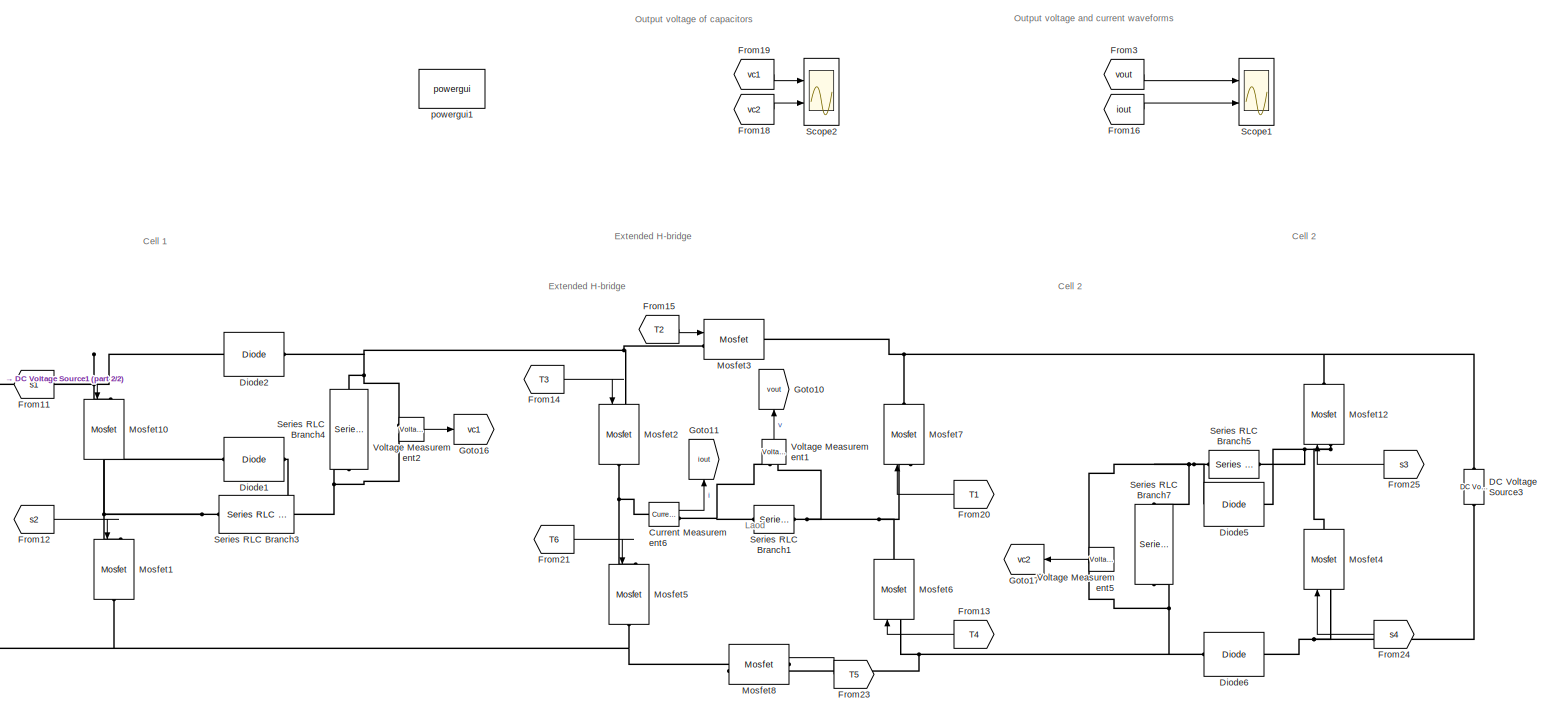
[diagram: root canvas - part 1/2, right side, full height]
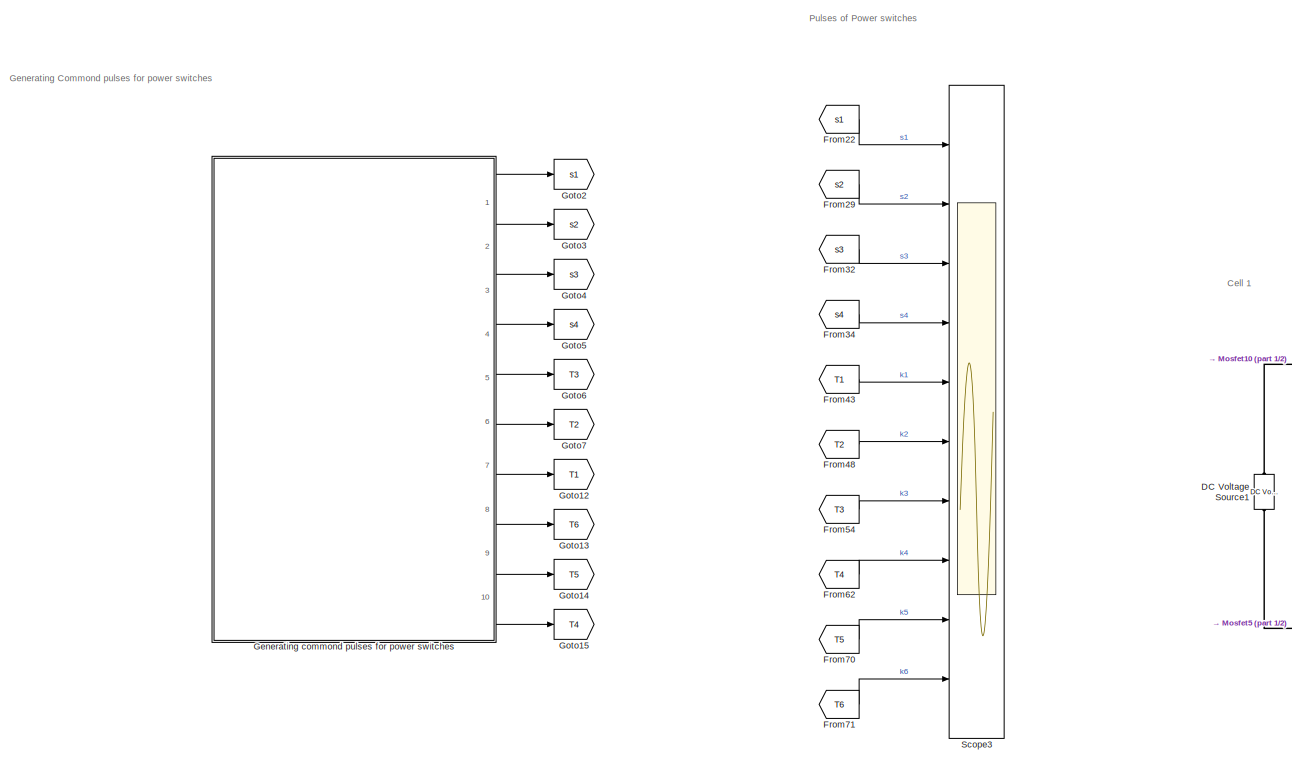
[diagram: root canvas - part 2/2, left side, full height]
MODEL slx_5348abb4a15b
KIND model
CONFIG AbsTol = auto
CONFIG EnableMultiTasking = on
CONFIG FixedStep = auto
CONFIG MaxStep = auto
CONFIG MinStep = auto
CONFIG RelTol = 1e-3
CONFIG SampleTimeConstraint = Unconstrained
CONFIG Solver = VariableStepAuto
CONFIG SolverName = VariableStepAuto
CONFIG StartTime = 0.0
CONFIG StopTime = 1
BLOCK [Reference] Current Measurement6  REF=powerlib/Measurements/Current Measurement
  Ports = [0, 1, 0, 0, 0, 1, 1]
  SourceBlock = powerlib/Measurements/Current Measurement
  SourceProductBaseCode = PS
  SourceType = Current Measurement
  UserDataPersistent = on
BLOCK [Reference] DC Voltage Source1  REF=powerlib/Electrical
Sources/DC Voltage Source
  NameLocation = right
  Ports = [0, 0, 0, 0, 0, 1, 1]
  SourceBlock = powerlib/Electrical\nSources/DC Voltage Source
  SourceProductBaseCode = PS
  SourceType = DC Voltage Source
BLOCK [Reference] DC Voltage Source3  REF=powerlib/Electrical
Sources/DC Voltage Source
  NameLocation = left
  Ports = [0, 0, 0, 0, 0, 1, 1]
  SourceBlock = powerlib/Electrical\nSources/DC Voltage Source
  SourceProductBaseCode = PS
  SourceType = DC Voltage Source
BLOCK [Reference] Diode1  REF=powerlib/Power
Electronics/Diode
  Ports = [0, 0, 0, 0, 0, 1, 1]
  SourceBlock = powerlib/Power\nElectronics/Diode
  SourceProductBaseCode = PS
  SourceType = Diode
BLOCK [Reference] Diode2  REF=powerlib/Power
Electronics/Diode
  Ports = [0, 0, 0, 0, 0, 1, 1]
  SourceBlock = powerlib/Power\nElectronics/Diode
  SourceProductBaseCode = PS
  SourceType = Diode
BLOCK [Reference] Diode5  REF=powerlib/Power
Electronics/Diode
  Ports = [0, 0, 0, 0, 0, 1, 1]
  SourceBlock = powerlib/Power\nElectronics/Diode
  SourceProductBaseCode = PS
  SourceType = Diode
BLOCK [Reference] Diode6  REF=powerlib/Power
Electronics/Diode
  Ports = [0, 0, 0, 0, 0, 1, 1]
  SourceBlock = powerlib/Power\nElectronics/Diode
  SourceProductBaseCode = PS
  SourceType = Diode
BLOCK [From] From11
  GotoTag = s1
BLOCK [From] From12
  GotoTag = s2
BLOCK [From] From13
  GotoTag = T4
  NameLocation = top
BLOCK [From] From14
  GotoTag = T3
BLOCK [From] From15
  GotoTag = T2
BLOCK [From] From16
  GotoTag = iout
BLOCK [From] From18
  GotoTag = vc2
  NameLocation = top
BLOCK [From] From19
  GotoTag = vc1
BLOCK [From] From20
  GotoTag = T1
  NameLocation = top
BLOCK [From] From21
  GotoTag = T6
BLOCK [From] From22
  GotoTag = s1
BLOCK [From] From23
  GotoTag = T5
  NameLocation = top
BLOCK [From] From24
  GotoTag = s4
  NameLocation = top
BLOCK [From] From25
  GotoTag = s3
  NameLocation = top
BLOCK [From] From29
  GotoTag = s2
BLOCK [From] From3
  GotoTag = vout
BLOCK [From] From32
  GotoTag = s3
BLOCK [From] From34
  GotoTag = s4
BLOCK [From] From43
  GotoTag = T1
BLOCK [From] From48
  GotoTag = T2
BLOCK [From] From54
  GotoTag = T3
BLOCK [From] From62
  GotoTag = T4
BLOCK [From] From70
  GotoTag = T5
BLOCK [From] From71
  GotoTag = T6
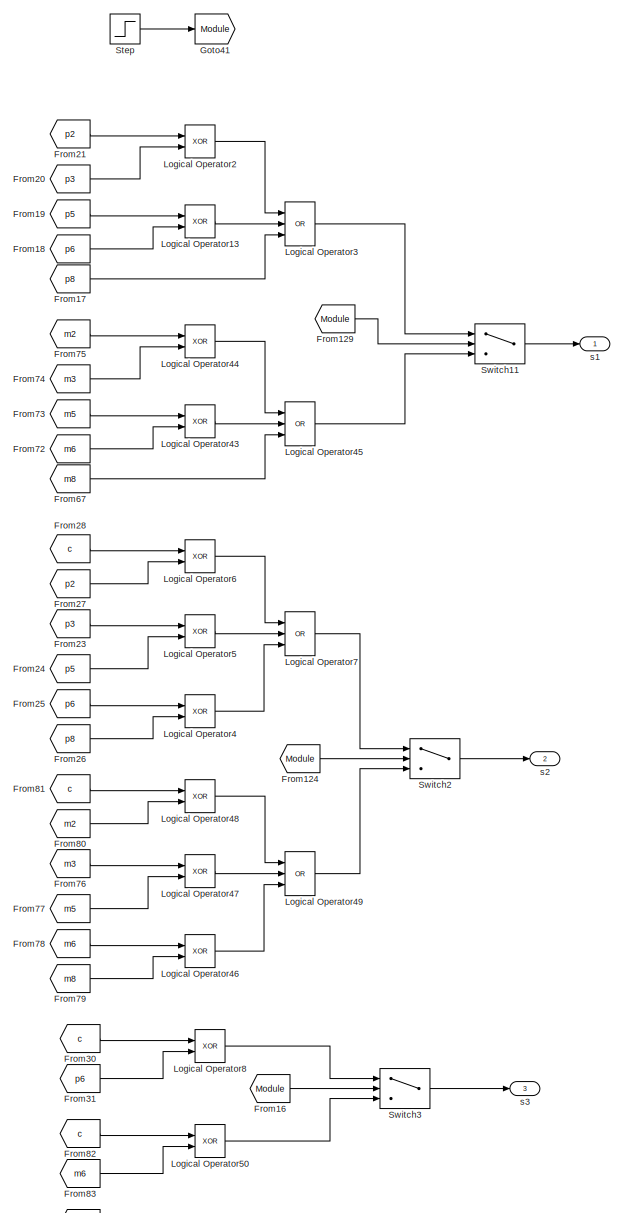
[diagram: Generating commond pulses for power switches - part 1/5, top center region]
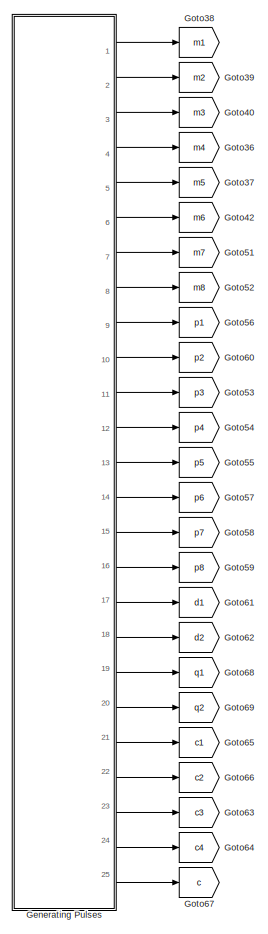
[diagram: Generating commond pulses for power switches - part 2/5, top left region]
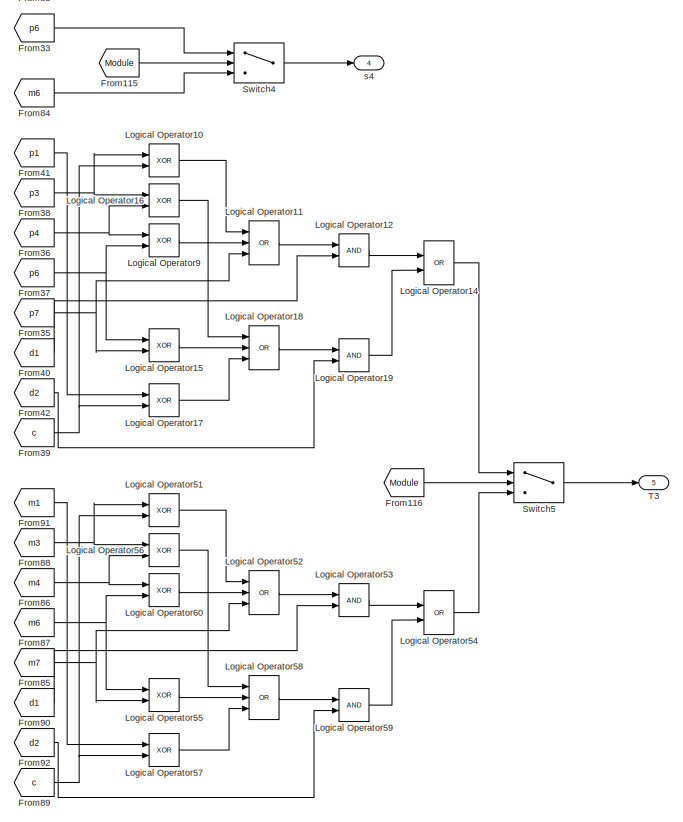
[diagram: Generating commond pulses for power switches - part 3/5, middle right region]
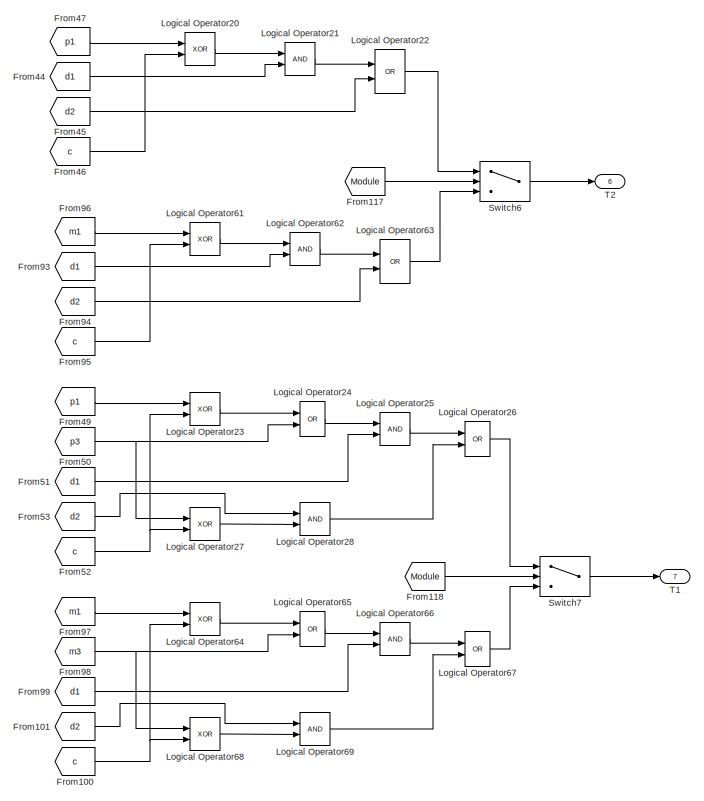
[diagram: Generating commond pulses for power switches - part 4/5, middle right region]
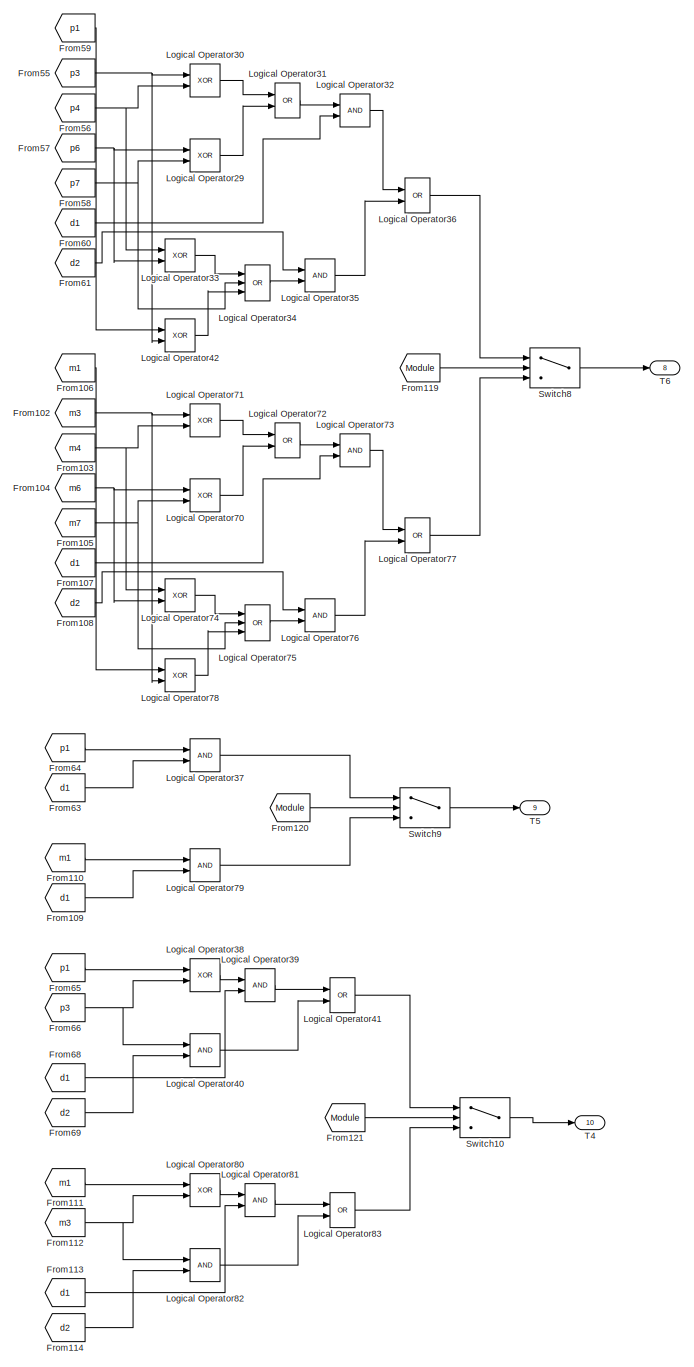
[diagram: Generating commond pulses for power switches - part 5/5, bottom right region]
BLOCK [SubSystem] Generating commond pulses for power switches
  Ports = [0, 10]
  RequestExecContextInheritance = off
BLOCK [From] Generating commond pulses for power switches/From100
  GotoTag = c
BLOCK [From] Generating commond pulses for power switches/From101
  GotoTag = d2
BLOCK [From] Generating commond pulses for power switches/From102
  GotoTag = m3
BLOCK [From] Generating commond pulses for power switches/From103
  GotoTag = m4
BLOCK [From] Generating commond pulses for power switches/From104
  GotoTag = m6
BLOCK [From] Generating commond pulses for power switches/From105
  GotoTag = m7
BLOCK [From] Generating commond pulses for power switches/From106
  GotoTag = m1
BLOCK [From] Generating commond pulses for power switches/From107
  GotoTag = d1
BLOCK [From] Generating commond pulses for power switches/From108
  GotoTag = d2
BLOCK [From] Generating commond pulses for power switches/From109
  GotoTag = d1
BLOCK [From] Generating commond pulses for power switches/From110
  GotoTag = m1
BLOCK [From] Generating commond pulses for power switches/From111
  GotoTag = m1
BLOCK [From] Generating commond pulses for power switches/From112
  GotoTag = m3
BLOCK [From] Generating commond pulses for power switches/From113
  GotoTag = d1
BLOCK [From] Generating commond pulses for power switches/From114
  GotoTag = d2
BLOCK [From] Generating commond pulses for power switches/From115
  GotoTag = Module
BLOCK [From] Generating commond pulses for power switches/From116
  GotoTag = Module
BLOCK [From] Generating commond pulses for power switches/From117
  GotoTag = Module
BLOCK [From] Generating commond pulses for power switches/From118
  GotoTag = Module
BLOCK [From] Generating commond pulses for power switches/From119
  GotoTag = Module
BLOCK [From] Generating commond pulses for power switches/From120
  GotoTag = Module
BLOCK [From] Generating commond pulses for power switches/From121
  GotoTag = Module
BLOCK [From] Generating commond pulses for power switches/From124
  GotoTag = Module
BLOCK [From] Generating commond pulses for power switches/From129
  GotoTag = Module
BLOCK [From] Generating commond pulses for power switches/From16
  GotoTag = Module
BLOCK [From] Generating commond pulses for power switches/From17
  GotoTag = p8
BLOCK [From] Generating commond pulses for power switches/From18
  GotoTag = p6
BLOCK [From] Generating commond pulses for power switches/From19
  GotoTag = p5
BLOCK [From] Generating commond pulses for power switches/From20
  GotoTag = p3
BLOCK [From] Generating commond pulses for power switches/From21
  GotoTag = p2
BLOCK [From] Generating commond pulses for power switches/From23
  GotoTag = p3
BLOCK [From] Generating commond pulses for power switches/From24
  GotoTag = p5
BLOCK [From] Generating commond pulses for power switches/From25
  GotoTag = p6
BLOCK [From] Generating commond pulses for power switches/From26
  GotoTag = p8
BLOCK [From] Generating commond pulses for power switches/From27
  GotoTag = p2
BLOCK [From] Generating commond pulses for power switches/From28
  GotoTag = c
BLOCK [From] Generating commond pulses for power switches/From30
  GotoTag = c
BLOCK [From] Generating commond pulses for power switches/From31
  GotoTag = p6
BLOCK [From] Generating commond pulses for power switches/From33
  GotoTag = p6
BLOCK [From] Generating commond pulses for power switches/From35
  GotoTag = p7
BLOCK [From] Generating commond pulses for power switches/From36
  GotoTag = p4
BLOCK [From] Generating commond pulses for power switches/From37
  GotoTag = p6
BLOCK [From] Generating commond pulses for power switches/From38
  GotoTag = p3
BLOCK [From] Generating commond pulses for power switches/From39
  GotoTag = c
BLOCK [From] Generating commond pulses for power switches/From40
  GotoTag = d1
BLOCK [From] Generating commond pulses for power switches/From41
  GotoTag = p1
BLOCK [From] Generating commond pulses for power switches/From42
  GotoTag = d2
BLOCK [From] Generating commond pulses for power switches/From44
  GotoTag = d1
BLOCK [From] Generating commond pulses for power switches/From45
  GotoTag = d2
BLOCK [From] Generating commond pulses for power switches/From46
  GotoTag = c
BLOCK [From] Generating commond pulses for power switches/From47
  GotoTag = p1
BLOCK [From] Generating commond pulses for power switches/From49
  GotoTag = p1
BLOCK [From] Generating commond pulses for power switches/From50
  GotoTag = p3
BLOCK [From] Generating commond pulses for power switches/From51
  GotoTag = d1
BLOCK [From] Generating commond pulses for power switches/From52
  GotoTag = c
BLOCK [From] Generating commond pulses for power switches/From53
  GotoTag = d2
BLOCK [From] Generating commond pulses for power switches/From55
  GotoTag = p3
BLOCK [From] Generating commond pulses for power switches/From56
  GotoTag = p4
BLOCK [From] Generating commond pulses for power switches/From57
  GotoTag = p6
BLOCK [From] Generating commond pulses for power switches/From58
  GotoTag = p7
BLOCK [From] Generating commond pulses for power switches/From59
  GotoTag = p1
BLOCK [From] Generating commond pulses for power switches/From60
  GotoTag = d1
BLOCK [From] Generating commond pulses for power switches/From61
  GotoTag = d2
BLOCK [From] Generating commond pulses for power switches/From63
  GotoTag = d1
BLOCK [From] Generating commond pulses for power switches/From64
  GotoTag = p1
BLOCK [From] Generating commond pulses for power switches/From65
  GotoTag = p1
BLOCK [From] Generating commond pulses for power switches/From66
  GotoTag = p3
BLOCK [From] Generating commond pulses for power switches/From67
  GotoTag = m8
BLOCK [From] Generating commond pulses for power switches/From68
  GotoTag = d1
BLOCK [From] Generating commond pulses for power switches/From69
  GotoTag = d2
BLOCK [From] Generating commond pulses for power switches/From72
  GotoTag = m6
BLOCK [From] Generating commond pulses for power switches/From73
  GotoTag = m5
BLOCK [From] Generating commond pulses for power switches/From74
  GotoTag = m3
BLOCK [From] Generating commond pulses for power switches/From75
  GotoTag = m2
BLOCK [From] Generating commond pulses for power switches/From76
  GotoTag = m3
BLOCK [From] Generating commond pulses for power switches/From77
  GotoTag = m5
BLOCK [From] Generating commond pulses for power switches/From78
  GotoTag = m6
BLOCK [From] Generating commond pulses for power switches/From79
  GotoTag = m8
BLOCK [From] Generating commond pulses for power switches/From80
  GotoTag = m2
BLOCK [From] Generating commond pulses for power switches/From81
  GotoTag = c
BLOCK [From] Generating commond pulses for power switches/From82
  GotoTag = c
BLOCK [From] Generating commond pulses for power switches/From83
  GotoTag = m6
BLOCK [From] Generating commond pulses for power switches/From84
  GotoTag = m6
BLOCK [From] Generating commond pulses for power switches/From85
  GotoTag = m7
BLOCK [From] Generating commond pulses for power switches/From86
  GotoTag = m4
BLOCK [From] Generating commond pulses for power switches/From87
  GotoTag = m6
BLOCK [From] Generating commond pulses for power switches/From88
  GotoTag = m3
BLOCK [From] Generating commond pulses for power switches/From89
  GotoTag = c
BLOCK [From] Generating commond pulses for power switches/From90
  GotoTag = d1
BLOCK [From] Generating commond pulses for power switches/From91
  GotoTag = m1
BLOCK [From] Generating commond pulses for power switches/From92
  GotoTag = d2
BLOCK [From] Generating commond pulses for power switches/From93
  GotoTag = d1
BLOCK [From] Generating commond pulses for power switches/From94
  GotoTag = d2
BLOCK [From] Generating commond pulses for power switches/From95
  GotoTag = c
BLOCK [From] Generating commond pulses for power switches/From96
  GotoTag = m1
BLOCK [From] Generating commond pulses for power switches/From97
  GotoTag = m1
BLOCK [From] Generating commond pulses for power switches/From98
  GotoTag = m3
BLOCK [From] Generating commond pulses for power switches/From99
  GotoTag = d1
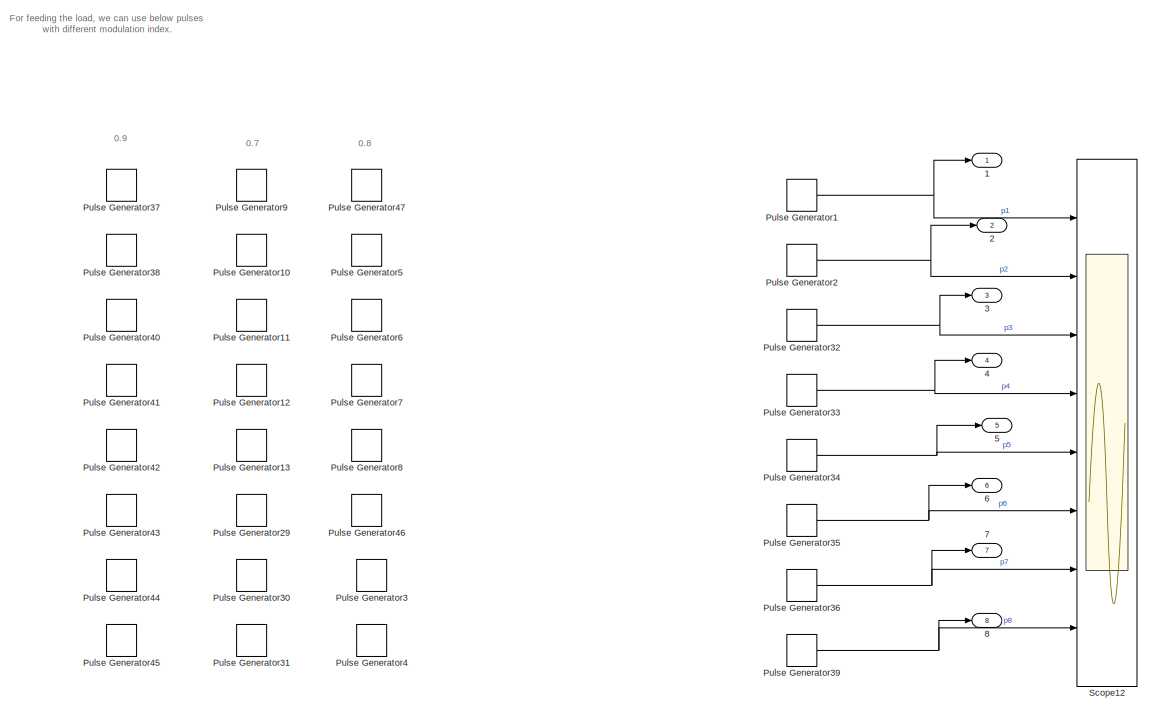
[diagram: Generating commond pulses for power switches/Generating Pulses - part 1/2, left side, full height]
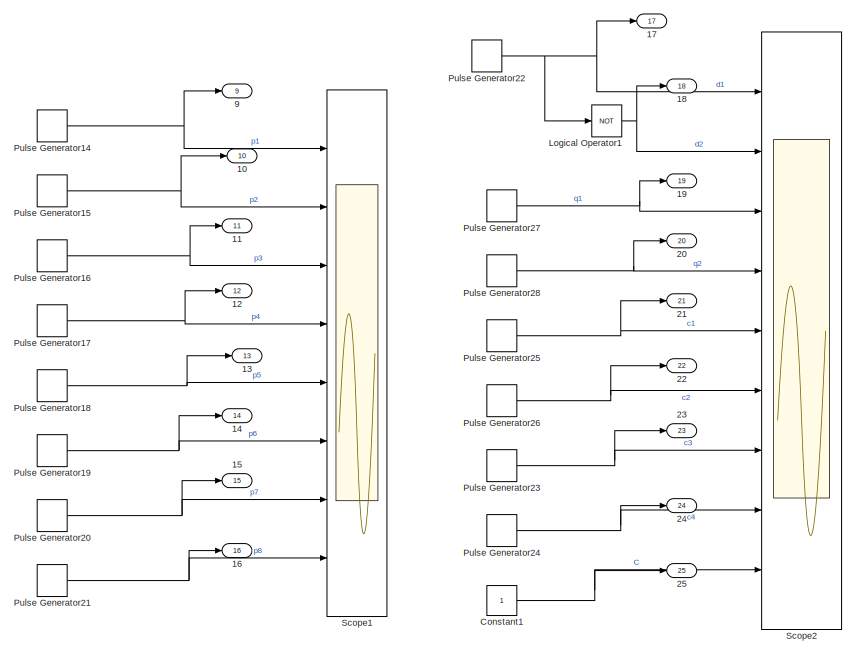
[diagram: Generating commond pulses for power switches/Generating Pulses - part 2/2, right side, full height]
BLOCK [SubSystem] Generating commond pulses for power switches/Generating Pulses
  Ports = [0, 25]
  RequestExecContextInheritance = off
BLOCK [Outport] Generating commond pulses for power switches/Generating Pulses/1
BLOCK [Outport] Generating commond pulses for power switches/Generating Pulses/10
  Port = 10
BLOCK [Outport] Generating commond pulses for power switches/Generating Pulses/11
  Port = 11
BLOCK [Outport] Generating commond pulses for power switches/Generating Pulses/12
  Port = 12
BLOCK [Outport] Generating commond pulses for power switches/Generating Pulses/13
  Port = 13
BLOCK [Outport] Generating commond pulses for power switches/Generating Pulses/14
  Port = 14
BLOCK [Outport] Generating commond pulses for power switches/Generating Pulses/15
  Port = 15
BLOCK [Outport] Generating commond pulses for power switches/Generating Pulses/16
  Port = 16
BLOCK [Outport] Generating commond pulses for power switches/Generating Pulses/17
  Port = 17
BLOCK [Outport] Generating commond pulses for power switches/Generating Pulses/18
  Port = 18
BLOCK [Outport] Generating commond pulses for power switches/Generating Pulses/19
  Port = 19
BLOCK [Outport] Generating commond pulses for power switches/Generating Pulses/2
  Port = 2
BLOCK [Outport] Generating commond pulses for power switches/Generating Pulses/20
  Port = 20
BLOCK [Outport] Generating commond pulses for power switches/Generating Pulses/21
  Port = 21
BLOCK [Outport] Generating commond pulses for power switches/Generating Pulses/22
  Port = 22
BLOCK [Outport] Generating commond pulses for power switches/Generating Pulses/23
  Port = 23
BLOCK [Outport] Generating commond pulses for power switches/Generating Pulses/24
  Port = 24
BLOCK [Outport] Generating commond pulses for power switches/Generating Pulses/25
  Port = 25
BLOCK [Outport] Generating commond pulses for power switches/Generating Pulses/3
  Port = 3
BLOCK [Outport] Generating commond pulses for power switches/Generating Pulses/4
  Port = 4
BLOCK [Outport] Generating commond pulses for power switches/Generating Pulses/5
  Port = 5
BLOCK [Outport] Generating commond pulses for power switches/Generating Pulses/6
  Port = 6
BLOCK [Outport] Generating commond pulses for power switches/Generating Pulses/7
  Port = 7
BLOCK [Outport] Generating commond pulses for power switches/Generating Pulses/8
  Port = 8
BLOCK [Outport] Generating commond pulses for power switches/Generating Pulses/9
  Port = 9
BLOCK [Constant] Generating commond pulses for power switches/Generating Pulses/Constant1
BLOCK [Logic] Generating commond pulses for power switches/Generating Pulses/Logical Operator1
  AllPortsSameDT = off
  Operator = NOT
  OutDataTypeStr = boolean
  Ports = [1, 1]
BLOCK [DiscretePulseGenerator] Generating commond pulses for power switches/Generating Pulses/Pulse Generator1
  Period = .01
  PhaseDelay = .0002
  Ports = [0, 1]
  PulseType = Time based
  PulseWidth = 95%
  VectorParams1D = off
BLOCK [DiscretePulseGenerator] Generating commond pulses for power switches/Generating Pulses/Pulse Generator10
  Period = .01
  PhaseDelay = .00085
  Ports = [0, 1]
  PulseType = Time based
  PulseWidth = 82%
  VectorParams1D = off
BLOCK [DiscretePulseGenerator] Generating commond pulses for power switches/Generating Pulses/Pulse Generator11
  Period = .01
  PhaseDelay = .0014
  Ports = [0, 1]
  PulseType = Time based
  PulseWidth = 70%
  VectorParams1D = off
BLOCK [DiscretePulseGenerator] Generating commond pulses for power switches/Generating Pulses/Pulse Generator12
  Period = .01
  PhaseDelay = .0021
  Ports = [0, 1]
  PulseType = Time based
  PulseWidth = 57%
  VectorParams1D = off
BLOCK [DiscretePulseGenerator] Generating commond pulses for power switches/Generating Pulses/Pulse Generator13
  Period = .01
  PhaseDelay = .0029
  Ports = [0, 1]
  PulseType = Time based
  PulseWidth = 40%
  VectorParams1D = off
BLOCK [DiscretePulseGenerator] Generating commond pulses for power switches/Generating Pulses/Pulse Generator14
  Period = .01
  PhaseDelay = .000197
  Ports = [0, 1]
  PulseType = Time based
  PulseWidth = 96%
  VectorParams1D = off
BLOCK [DiscretePulseGenerator] Generating commond pulses for power switches/Generating Pulses/Pulse Generator15
  Period = .01
  PhaseDelay = .00059
  Ports = [0, 1]
  PulseType = Time based
  PulseWidth = 88%
  VectorParams1D = off
BLOCK [DiscretePulseGenerator] Generating commond pulses for power switches/Generating Pulses/Pulse Generator16
  Period = .01
  PhaseDelay = .001
  Ports = [0, 1]
  PulseType = Time based
  PulseWidth = 79%
  VectorParams1D = off
BLOCK [DiscretePulseGenerator] Generating commond pulses for power switches/Generating Pulses/Pulse Generator17
  Period = .01
  PhaseDelay = .00143
  Ports = [0, 1]
  PulseType = Time based
  PulseWidth = 71%
  VectorParams1D = off
BLOCK [DiscretePulseGenerator] Generating commond pulses for power switches/Generating Pulses/Pulse Generator18
  Period = .01
  PhaseDelay = .00187
  Ports = [0, 1]
  PulseType = Time based
  PulseWidth = 62%
  VectorParams1D = off
BLOCK [DiscretePulseGenerator] Generating commond pulses for power switches/Generating Pulses/Pulse Generator19
  Period = .01
  PhaseDelay = .0024
  Ports = [0, 1]
  PulseType = Time based
  PulseWidth = 51%
  VectorParams1D = off
BLOCK [DiscretePulseGenerator] Generating commond pulses for power switches/Generating Pulses/Pulse Generator2
  Period = .01
  PhaseDelay = .00066
  Ports = [0, 1]
  PulseType = Time based
  PulseWidth = 86%
  VectorParams1D = off
BLOCK [DiscretePulseGenerator] Generating commond pulses for power switches/Generating Pulses/Pulse Generator20
  Period = .01
  PhaseDelay = .0029
  Ports = [0, 1]
  PulseType = Time based
  PulseWidth = 40%
  VectorParams1D = off
BLOCK [DiscretePulseGenerator] Generating commond pulses for power switches/Generating Pulses/Pulse Generator21
  Period = .01
  PhaseDelay = .0038
  Ports = [0, 1]
  PulseType = Time based
  PulseWidth = 23%
  VectorParams1D = off
BLOCK [DiscretePulseGenerator] Generating commond pulses for power switches/Generating Pulses/Pulse Generator22
  Period = 1/50
  Ports = [0, 1]
  PulseType = Time based
  PulseWidth = 50%
  VectorParams1D = off
BLOCK [DiscretePulseGenerator] Generating commond pulses for power switches/Generating Pulses/Pulse Generator23
  Period = 1/50
  PhaseDelay = .01
  Ports = [0, 1]
  PulseType = Time based
  PulseWidth = 25%
  VectorParams1D = off
BLOCK [DiscretePulseGenerator] Generating commond pulses for power switches/Generating Pulses/Pulse Generator24
  Period = 1/50
  PhaseDelay = .015
  Ports = [0, 1]
  PulseType = Time based
  PulseWidth = 25%
  VectorParams1D = off
BLOCK [DiscretePulseGenerator] Generating commond pulses for power switches/Generating Pulses/Pulse Generator25
  Period = 1/50
  Ports = [0, 1]
  PulseType = Time based
  PulseWidth = 25%
  VectorParams1D = off
BLOCK [DiscretePulseGenerator] Generating commond pulses for power switches/Generating Pulses/Pulse Generator26
  Period = 1/50
  PhaseDelay = .005
  Ports = [0, 1]
  PulseType = Time based
  PulseWidth = 25%
  VectorParams1D = off
BLOCK [DiscretePulseGenerator] Generating commond pulses for power switches/Generating Pulses/Pulse Generator27
  Period = .01
  Ports = [0, 1]
  PulseType = Time based
  PulseWidth = 50%
  VectorParams1D = off
BLOCK [DiscretePulseGenerator] Generating commond pulses for power switches/Generating Pulses/Pulse Generator28
  Period = .01
  PhaseDelay = .005
  Ports = [0, 1]
  PulseType = Time based
  PulseWidth = 50%
  VectorParams1D = off
BLOCK [DiscretePulseGenerator] Generating commond pulses for power switches/Generating Pulses/Pulse Generator29
  Period = .01
  PhaseDelay = .0043
  Ports = [0, 1]
  PulseType = Time based
  PulseWidth = 12%
  VectorParams1D = off
BLOCK [DiscretePulseGenerator] Generating commond pulses for power switches/Generating Pulses/Pulse Generator3
  Period = .01
  PhaseDelay = .0032
  Ports = [0, 1]
  PulseType = Time based
  PulseWidth = 0.000001
  VectorParams1D = off
BLOCK [DiscretePulseGenerator] Generating commond pulses for power switches/Generating Pulses/Pulse Generator30
  Period = .01
  PhaseDelay = .0035
  Ports = [0, 1]
  PulseType = Time based
  PulseWidth = 0.0001
  VectorParams1D = off
BLOCK [DiscretePulseGenerator] Generating commond pulses for power switches/Generating Pulses/Pulse Generator31
  Period = .01
  PhaseDelay = .0031
  Ports = [0, 1]
  PulseType = Time based
  PulseWidth = 0.0001
  VectorParams1D = off
BLOCK [DiscretePulseGenerator] Generating commond pulses for power switches/Generating Pulses/Pulse Generator32
  Period = .01
  PhaseDelay = .0011
  Ports = [0, 1]
  PulseType = Time based
  PulseWidth = 77%
  VectorParams1D = off
BLOCK [DiscretePulseGenerator] Generating commond pulses for power switches/Generating Pulses/Pulse Generator33
  Period = .01
  PhaseDelay = .0015
  Ports = [0, 1]
  PulseType = Time based
  PulseWidth = 68%
  VectorParams1D = off
BLOCK [DiscretePulseGenerator] Generating commond pulses for power switches/Generating Pulses/Pulse Generator34
  Period = .01
  PhaseDelay = .0021
  Ports = [0, 1]
  PulseType = Time based
  PulseWidth = 57%
  VectorParams1D = off
BLOCK [DiscretePulseGenerator] Generating commond pulses for power switches/Generating Pulses/Pulse Generator35
  Period = .01
  PhaseDelay = .0027
  Ports = [0, 1]
  PulseType = Time based
  PulseWidth = 45%
  VectorParams1D = off
BLOCK [DiscretePulseGenerator] Generating commond pulses for power switches/Generating Pulses/Pulse Generator36
  Period = .01
  PhaseDelay = .0035
  Ports = [0, 1]
  PulseType = Time based
  PulseWidth = 28%
  VectorParams1D = off
BLOCK [DiscretePulseGenerator] Generating commond pulses for power switches/Generating Pulses/Pulse Generator37
  Period = .01
  PhaseDelay = .0002
  Ports = [0, 1]
  PulseType = Time based
  PulseWidth = 95%
  VectorParams1D = off
BLOCK [DiscretePulseGenerator] Generating commond pulses for power switches/Generating Pulses/Pulse Generator38
  Period = .01
  PhaseDelay = .00066
  Ports = [0, 1]
  PulseType = Time based
  PulseWidth = 86%
  VectorParams1D = off
BLOCK [DiscretePulseGenerator] Generating commond pulses for power switches/Generating Pulses/Pulse Generator39
  Period = .01
  PhaseDelay = .0031
  Ports = [0, 1]
  PulseType = Time based
  PulseWidth = 0.0001
  VectorParams1D = off
BLOCK [DiscretePulseGenerator] Generating commond pulses for power switches/Generating Pulses/Pulse Generator4
  Period = .01
  PhaseDelay = .0032
  Ports = [0, 1]
  PulseType = Time based
  PulseWidth = 0.000001
  VectorParams1D = off
BLOCK [DiscretePulseGenerator] Generating commond pulses for power switches/Generating Pulses/Pulse Generator40
  Period = .01
  PhaseDelay = .0011
  Ports = [0, 1]
  PulseType = Time based
  PulseWidth = 77%
  VectorParams1D = off
BLOCK [DiscretePulseGenerator] Generating commond pulses for power switches/Generating Pulses/Pulse Generator41
  Period = .01
  PhaseDelay = .0015
  Ports = [0, 1]
  PulseType = Time based
  PulseWidth = 68%
  VectorParams1D = off
BLOCK [DiscretePulseGenerator] Generating commond pulses for power switches/Generating Pulses/Pulse Generator42
  Period = .01
  PhaseDelay = .0021
  Ports = [0, 1]
  PulseType = Time based
  PulseWidth = 57%
  VectorParams1D = off
BLOCK [DiscretePulseGenerator] Generating commond pulses for power switches/Generating Pulses/Pulse Generator43
  Period = .01
  PhaseDelay = .0027
  Ports = [0, 1]
  PulseType = Time based
  PulseWidth = 45%
  VectorParams1D = off
BLOCK [DiscretePulseGenerator] Generating commond pulses for power switches/Generating Pulses/Pulse Generator44
  Period = .01
  PhaseDelay = .0035
  Ports = [0, 1]
  PulseType = Time based
  PulseWidth = 28%
  VectorParams1D = off
BLOCK [DiscretePulseGenerator] Generating commond pulses for power switches/Generating Pulses/Pulse Generator45
  Period = .01
  PhaseDelay = .0031
  Ports = [0, 1]
  PulseType = Time based
  PulseWidth = 0.0001
  VectorParams1D = off
BLOCK [DiscretePulseGenerator] Generating commond pulses for power switches/Generating Pulses/Pulse Generator46
  Period = .01
  PhaseDelay = .0032
  Ports = [0, 1]
  PulseType = Time based
  PulseWidth = 34%
  VectorParams1D = off
BLOCK [DiscretePulseGenerator] Generating commond pulses for power switches/Generating Pulses/Pulse Generator47
  Period = .01
  PhaseDelay = .0002
  Ports = [0, 1]
  PulseType = Time based
  PulseWidth = 95%
  VectorParams1D = off
BLOCK [DiscretePulseGenerator] Generating commond pulses for power switches/Generating Pulses/Pulse Generator5
  Period = .01
  PhaseDelay = .00073
  Ports = [0, 1]
  PulseType = Time based
  PulseWidth = 85%
  VectorParams1D = off
BLOCK [DiscretePulseGenerator] Generating commond pulses for power switches/Generating Pulses/Pulse Generator6
  Period = .01
  PhaseDelay = .0012
  Ports = [0, 1]
  PulseType = Time based
  PulseWidth = 74%
  VectorParams1D = off
BLOCK [DiscretePulseGenerator] Generating commond pulses for power switches/Generating Pulses/Pulse Generator7
  Period = .01
  PhaseDelay = .0018
  Ports = [0, 1]
  PulseType = Time based
  PulseWidth = 63%
  VectorParams1D = off
BLOCK [DiscretePulseGenerator] Generating commond pulses for power switches/Generating Pulses/Pulse Generator8
  Period = .01
  PhaseDelay = .0024
  Ports = [0, 1]
  PulseType = Time based
  PulseWidth = 50%
  VectorParams1D = off
BLOCK [DiscretePulseGenerator] Generating commond pulses for power switches/Generating Pulses/Pulse Generator9
  Period = .01
  PhaseDelay = .00028
  Ports = [0, 1]
  PulseType = Time based
  PulseWidth = 94%
  VectorParams1D = off
BLOCK [Scope] Generating commond pulses for power switches/Generating Pulses/Scope1
  Floating = off
  NumInputPorts = 8
  Ports = [8]
  ScopeSpecificationString = C++SS(StrPVP('SaveName','ScopeData1'),StrPVP('LimitDataPoints','on'),StrPVP('DataFormat','Array'),StrPVP('Decimation','1'),StrPVP('BlockParamSampleInput','off'))
BLOCK [Scope] Generating commond pulses for power switches/Generating Pulses/Scope12
  Floating = off
  NumInputPorts = 8
  Ports = [8]
  ScopeSpecificationString = Simulink.scopes.TimeScopeBlockCfg('CurrentConfiguration', extmgr.ConfigurationSet(extmgr.Configuration('Core','General UI',true),extmgr.Configuration('Core','Source UI',true),extmgr.Configuration('Sources','WiredSimulink',true,'DataLoggingVariableName','ScopeData2','DataLoggingLimitDataPoints',true,'DataLoggingSaveFormat','Array','DataLoggingDecimation','1','DataLoggingDecimateData',true),extmgr.C...<+1509ch>
BLOCK [Scope] Generating commond pulses for power switches/Generating Pulses/Scope2
  Floating = off
  NumInputPorts = 9
  Ports = [9]
  ScopeSpecificationString = Simulink.scopes.TimeScopeBlockCfg('CurrentConfiguration', extmgr.ConfigurationSet(extmgr.Configuration('Core','General UI',true),extmgr.Configuration('Core','Source UI',true),extmgr.Configuration('Sources','WiredSimulink',true,'DataLoggingVariableName','ScopeData3'),extmgr.Configuration('Visuals','Time Domain',true,'SerializedDisplays',{struct('MinYLimReal','-0.125','MaxYLimReal','1.125','YLabelRe...<+1388ch>
BLOCK [Goto] Generating commond pulses for power switches/Goto36
  GotoTag = m4
BLOCK [Goto] Generating commond pulses for power switches/Goto37
  GotoTag = m5
BLOCK [Goto] Generating commond pulses for power switches/Goto38
  GotoTag = m1
BLOCK [Goto] Generating commond pulses for power switches/Goto39
  GotoTag = m2
BLOCK [Goto] Generating commond pulses for power switches/Goto40
  GotoTag = m3
BLOCK [Goto] Generating commond pulses for power switches/Goto41
  GotoTag = Module
BLOCK [Goto] Generating commond pulses for power switches/Goto42
  GotoTag = m6
BLOCK [Goto] Generating commond pulses for power switches/Goto51
  GotoTag = m7
BLOCK [Goto] Generating commond pulses for power switches/Goto52
  GotoTag = m8
BLOCK [Goto] Generating commond pulses for power switches/Goto53
  GotoTag = p3
BLOCK [Goto] Generating commond pulses for power switches/Goto54
  GotoTag = p4
BLOCK [Goto] Generating commond pulses for power switches/Goto55
  GotoTag = p5
BLOCK [Goto] Generating commond pulses for power switches/Goto56
  GotoTag = p1
BLOCK [Goto] Generating commond pulses for power switches/Goto57
  GotoTag = p6
BLOCK [Goto] Generating commond pulses for power switches/Goto58
  GotoTag = p7
BLOCK [Goto] Generating commond pulses for power switches/Goto59
  GotoTag = p8
BLOCK [Goto] Generating commond pulses for power switches/Goto60
  GotoTag = p2
BLOCK [Goto] Generating commond pulses for power switches/Goto61
  GotoTag = d1
BLOCK [Goto] Generating commond pulses for power switches/Goto62
  GotoTag = d2
BLOCK [Goto] Generating commond pulses for power switches/Goto63
  GotoTag = c3
BLOCK [Goto] Generating commond pulses for power switches/Goto64
  GotoTag = c4
BLOCK [Goto] Generating commond pulses for power switches/Goto65
  GotoTag = c1
BLOCK [Goto] Generating commond pulses for power switches/Goto66
  GotoTag = c2
BLOCK [Goto] Generating commond pulses for power switches/Goto67
  GotoTag = c
BLOCK [Goto] Generating commond pulses for power switches/Goto68
  GotoTag = q1
BLOCK [Goto] Generating commond pulses for power switches/Goto69
  GotoTag = q2
BLOCK [Logic] Generating commond pulses for power switches/Logical Operator10
  AllPortsSameDT = off
  Operator = XOR
  OutDataTypeStr = boolean
  Ports = [2, 1]
BLOCK [Logic] Generating commond pulses for power switches/Logical Operator11
  AllPortsSameDT = off
  Inputs = 3
  Operator = OR
  OutDataTypeStr = boolean
  Ports = [3, 1]
BLOCK [Logic] Generating commond pulses for power switches/Logical Operator12
  AllPortsSameDT = off
  OutDataTypeStr = boolean
  Ports = [2, 1]
BLOCK [Logic] Generating commond pulses for power switches/Logical Operator13
  AllPortsSameDT = off
  Operator = XOR
  OutDataTypeStr = boolean
  Ports = [2, 1]
BLOCK [Logic] Generating commond pulses for power switches/Logical Operator14
  AllPortsSameDT = off
  Operator = OR
  OutDataTypeStr = boolean
  Ports = [2, 1]
BLOCK [Logic] Generating commond pulses for power switches/Logical Operator15
  AllPortsSameDT = off
  Operator = XOR
  OutDataTypeStr = boolean
  Ports = [2, 1]
BLOCK [Logic] Generating commond pulses for power switches/Logical Operator16
  AllPortsSameDT = off
  Operator = XOR
  OutDataTypeStr = boolean
  Ports = [2, 1]
BLOCK [Logic] Generating commond pulses for power switches/Logical Operator17
  AllPortsSameDT = off
  Operator = XOR
  OutDataTypeStr = boolean
  Ports = [2, 1]
BLOCK [Logic] Generating commond pulses for power switches/Logical Operator18
  AllPortsSameDT = off
  Inputs = 3
  Operator = OR
  OutDataTypeStr = boolean
  Ports = [3, 1]
BLOCK [Logic] Generating commond pulses for power switches/Logical Operator19
  AllPortsSameDT = off
  OutDataTypeStr = boolean
  Ports = [2, 1]
BLOCK [Logic] Generating commond pulses for power switches/Logical Operator2
  AllPortsSameDT = off
  Operator = XOR
  OutDataTypeStr = boolean
  Ports = [2, 1]
BLOCK [Logic] Generating commond pulses for power switches/Logical Operator20
  AllPortsSameDT = off
  Operator = XOR
  OutDataTypeStr = boolean
  Ports = [2, 1]
BLOCK [Logic] Generating commond pulses for power switches/Logical Operator21
  AllPortsSameDT = off
  OutDataTypeStr = boolean
  Ports = [2, 1]
BLOCK [Logic] Generating commond pulses for power switches/Logical Operator22
  AllPortsSameDT = off
  Operator = OR
  OutDataTypeStr = boolean
  Ports = [2, 1]
BLOCK [Logic] Generating commond pulses for power switches/Logical Operator23
  AllPortsSameDT = off
  Operator = XOR
  OutDataTypeStr = boolean
  Ports = [2, 1]
BLOCK [Logic] Generating commond pulses for power switches/Logical Operator24
  AllPortsSameDT = off
  Operator = OR
  OutDataTypeStr = boolean
  Ports = [2, 1]
BLOCK [Logic] Generating commond pulses for power switches/Logical Operator25
  AllPortsSameDT = off
  OutDataTypeStr = boolean
  Ports = [2, 1]
BLOCK [Logic] Generating commond pulses for power switches/Logical Operator26
  AllPortsSameDT = off
  Operator = OR
  OutDataTypeStr = boolean
  Ports = [2, 1]
BLOCK [Logic] Generating commond pulses for power switches/Logical Operator27
  AllPortsSameDT = off
  Operator = XOR
  OutDataTypeStr = boolean
  Ports = [2, 1]
BLOCK [Logic] Generating commond pulses for power switches/Logical Operator28
  AllPortsSameDT = off
  OutDataTypeStr = boolean
  Ports = [2, 1]
BLOCK [Logic] Generating commond pulses for power switches/Logical Operator29
  AllPortsSameDT = off
  Operator = XOR
  OutDataTypeStr = boolean
  Ports = [2, 1]
BLOCK [Logic] Generating commond pulses for power switches/Logical Operator3
  AllPortsSameDT = off
  Inputs = 3
  Operator = OR
  OutDataTypeStr = boolean
  Ports = [3, 1]
BLOCK [Logic] Generating commond pulses for power switches/Logical Operator30
  AllPortsSameDT = off
  Operator = XOR
  OutDataTypeStr = boolean
  Ports = [2, 1]
BLOCK [Logic] Generating commond pulses for power switches/Logical Operator31
  AllPortsSameDT = off
  Operator = OR
  OutDataTypeStr = boolean
  Ports = [2, 1]
BLOCK [Logic] Generating commond pulses for power switches/Logical Operator32
  AllPortsSameDT = off
  OutDataTypeStr = boolean
  Ports = [2, 1]
BLOCK [Logic] Generating commond pulses for power switches/Logical Operator33
  AllPortsSameDT = off
  Operator = XOR
  OutDataTypeStr = boolean
  Ports = [2, 1]
BLOCK [Logic] Generating commond pulses for power switches/Logical Operator34
  AllPortsSameDT = off
  Inputs = 3
  Operator = OR
  OutDataTypeStr = boolean
  Ports = [3, 1]
BLOCK [Logic] Generating commond pulses for power switches/Logical Operator35
  AllPortsSameDT = off
  OutDataTypeStr = boolean
  Ports = [2, 1]
BLOCK [Logic] Generating commond pulses for power switches/Logical Operator36
  AllPortsSameDT = off
  Operator = OR
  OutDataTypeStr = boolean
  Ports = [2, 1]
BLOCK [Logic] Generating commond pulses for power switches/Logical Operator37
  AllPortsSameDT = off
  OutDataTypeStr = boolean
  Ports = [2, 1]
BLOCK [Logic] Generating commond pulses for power switches/Logical Operator38
  AllPortsSameDT = off
  Operator = XOR
  OutDataTypeStr = boolean
  Ports = [2, 1]
BLOCK [Logic] Generating commond pulses for power switches/Logical Operator39
  AllPortsSameDT = off
  OutDataTypeStr = boolean
  Ports = [2, 1]
BLOCK [Logic] Generating commond pulses for power switches/Logical Operator4
  AllPortsSameDT = off
  Operator = XOR
  OutDataTypeStr = boolean
  Ports = [2, 1]
BLOCK [Logic] Generating commond pulses for power switches/Logical Operator40
  AllPortsSameDT = off
  OutDataTypeStr = boolean
  Ports = [2, 1]
BLOCK [Logic] Generating commond pulses for power switches/Logical Operator41
  AllPortsSameDT = off
  Operator = OR
  OutDataTypeStr = boolean
  Ports = [2, 1]
BLOCK [Logic] Generating commond pulses for power switches/Logical Operator42
  AllPortsSameDT = off
  Operator = XOR
  OutDataTypeStr = boolean
  Ports = [2, 1]
BLOCK [Logic] Generating commond pulses for power switches/Logical Operator43
  AllPortsSameDT = off
  Operator = XOR
  OutDataTypeStr = boolean
  Ports = [2, 1]
BLOCK [Logic] Generating commond pulses for power switches/Logical Operator44
  AllPortsSameDT = off
  Operator = XOR
  OutDataTypeStr = boolean
  Ports = [2, 1]
BLOCK [Logic] Generating commond pulses for power switches/Logical Operator45
  AllPortsSameDT = off
  Inputs = 3
  Operator = OR
  OutDataTypeStr = boolean
  Ports = [3, 1]
BLOCK [Logic] Generating commond pulses for power switches/Logical Operator46
  AllPortsSameDT = off
  Operator = XOR
  OutDataTypeStr = boolean
  Ports = [2, 1]
BLOCK [Logic] Generating commond pulses for power switches/Logical Operator47
  AllPortsSameDT = off
  Operator = XOR
  OutDataTypeStr = boolean
  Ports = [2, 1]
BLOCK [Logic] Generating commond pulses for power switches/Logical Operator48
  AllPortsSameDT = off
  Operator = XOR
  OutDataTypeStr = boolean
  Ports = [2, 1]
BLOCK [Logic] Generating commond pulses for power switches/Logical Operator49
  AllPortsSameDT = off
  Inputs = 3
  Operator = OR
  OutDataTypeStr = boolean
  Ports = [3, 1]
BLOCK [Logic] Generating commond pulses for power switches/Logical Operator5
  AllPortsSameDT = off
  Operator = XOR
  OutDataTypeStr = boolean
  Ports = [2, 1]
BLOCK [Logic] Generating commond pulses for power switches/Logical Operator50
  AllPortsSameDT = off
  Operator = XOR
  OutDataTypeStr = boolean
  Ports = [2, 1]
BLOCK [Logic] Generating commond pulses for power switches/Logical Operator51
  AllPortsSameDT = off
  Operator = XOR
  OutDataTypeStr = boolean
  Ports = [2, 1]
BLOCK [Logic] Generating commond pulses for power switches/Logical Operator52
  AllPortsSameDT = off
  Inputs = 3
  Operator = OR
  OutDataTypeStr = boolean
  Ports = [3, 1]
BLOCK [Logic] Generating commond pulses for power switches/Logical Operator53
  AllPortsSameDT = off
  OutDataTypeStr = boolean
  Ports = [2, 1]
BLOCK [Logic] Generating commond pulses for power switches/Logical Operator54
  AllPortsSameDT = off
  Operator = OR
  OutDataTypeStr = boolean
  Ports = [2, 1]
BLOCK [Logic] Generating commond pulses for power switches/Logical Operator55
  AllPortsSameDT = off
  Operator = XOR
  OutDataTypeStr = boolean
  Ports = [2, 1]
BLOCK [Logic] Generating commond pulses for power switches/Logical Operator56
  AllPortsSameDT = off
  Operator = XOR
  OutDataTypeStr = boolean
  Ports = [2, 1]
BLOCK [Logic] Generating commond pulses for power switches/Logical Operator57
  AllPortsSameDT = off
  Operator = XOR
  OutDataTypeStr = boolean
  Ports = [2, 1]
BLOCK [Logic] Generating commond pulses for power switches/Logical Operator58
  AllPortsSameDT = off
  Inputs = 3
  Operator = OR
  OutDataTypeStr = boolean
  Ports = [3, 1]
BLOCK [Logic] Generating commond pulses for power switches/Logical Operator59
  AllPortsSameDT = off
  OutDataTypeStr = boolean
  Ports = [2, 1]
BLOCK [Logic] Generating commond pulses for power switches/Logical Operator6
  AllPortsSameDT = off
  Operator = XOR
  OutDataTypeStr = boolean
  Ports = [2, 1]
BLOCK [Logic] Generating commond pulses for power switches/Logical Operator60
  AllPortsSameDT = off
  Operator = XOR
  OutDataTypeStr = boolean
  Ports = [2, 1]
BLOCK [Logic] Generating commond pulses for power switches/Logical Operator61
  AllPortsSameDT = off
  Operator = XOR
  OutDataTypeStr = boolean
  Ports = [2, 1]
BLOCK [Logic] Generating commond pulses for power switches/Logical Operator62
  AllPortsSameDT = off
  OutDataTypeStr = boolean
  Ports = [2, 1]
BLOCK [Logic] Generating commond pulses for power switches/Logical Operator63
  AllPortsSameDT = off
  Operator = OR
  OutDataTypeStr = boolean
  Ports = [2, 1]
BLOCK [Logic] Generating commond pulses for power switches/Logical Operator64
  AllPortsSameDT = off
  Operator = XOR
  OutDataTypeStr = boolean
  Ports = [2, 1]
BLOCK [Logic] Generating commond pulses for power switches/Logical Operator65
  AllPortsSameDT = off
  Operator = OR
  OutDataTypeStr = boolean
  Ports = [2, 1]
BLOCK [Logic] Generating commond pulses for power switches/Logical Operator66
  AllPortsSameDT = off
  OutDataTypeStr = boolean
  Ports = [2, 1]
BLOCK [Logic] Generating commond pulses for power switches/Logical Operator67
  AllPortsSameDT = off
  Operator = OR
  OutDataTypeStr = boolean
  Ports = [2, 1]
BLOCK [Logic] Generating commond pulses for power switches/Logical Operator68
  AllPortsSameDT = off
  Operator = XOR
  OutDataTypeStr = boolean
  Ports = [2, 1]
BLOCK [Logic] Generating commond pulses for power switches/Logical Operator69
  AllPortsSameDT = off
  OutDataTypeStr = boolean
  Ports = [2, 1]
BLOCK [Logic] Generating commond pulses for power switches/Logical Operator7
  AllPortsSameDT = off
  Inputs = 3
  Operator = OR
  OutDataTypeStr = boolean
  Ports = [3, 1]
BLOCK [Logic] Generating commond pulses for power switches/Logical Operator70
  AllPortsSameDT = off
  Operator = XOR
  OutDataTypeStr = boolean
  Ports = [2, 1]
BLOCK [Logic] Generating commond pulses for power switches/Logical Operator71
  AllPortsSameDT = off
  Operator = XOR
  OutDataTypeStr = boolean
  Ports = [2, 1]
BLOCK [Logic] Generating commond pulses for power switches/Logical Operator72
  AllPortsSameDT = off
  Operator = OR
  OutDataTypeStr = boolean
  Ports = [2, 1]
BLOCK [Logic] Generating commond pulses for power switches/Logical Operator73
  AllPortsSameDT = off
  OutDataTypeStr = boolean
  Ports = [2, 1]
BLOCK [Logic] Generating commond pulses for power switches/Logical Operator74
  AllPortsSameDT = off
  Operator = XOR
  OutDataTypeStr = boolean
  Ports = [2, 1]
BLOCK [Logic] Generating commond pulses for power switches/Logical Operator75
  AllPortsSameDT = off
  Inputs = 3
  Operator = OR
  OutDataTypeStr = boolean
  Ports = [3, 1]
BLOCK [Logic] Generating commond pulses for power switches/Logical Operator76
  AllPortsSameDT = off
  OutDataTypeStr = boolean
  Ports = [2, 1]
BLOCK [Logic] Generating commond pulses for power switches/Logical Operator77
  AllPortsSameDT = off
  Operator = OR
  OutDataTypeStr = boolean
  Ports = [2, 1]
BLOCK [Logic] Generating commond pulses for power switches/Logical Operator78
  AllPortsSameDT = off
  Operator = XOR
  OutDataTypeStr = boolean
  Ports = [2, 1]
BLOCK [Logic] Generating commond pulses for power switches/Logical Operator79
  AllPortsSameDT = off
  OutDataTypeStr = boolean
  Ports = [2, 1]
BLOCK [Logic] Generating commond pulses for power switches/Logical Operator8
  AllPortsSameDT = off
  Operator = XOR
  OutDataTypeStr = boolean
  Ports = [2, 1]
BLOCK [Logic] Generating commond pulses for power switches/Logical Operator80
  AllPortsSameDT = off
  Operator = XOR
  OutDataTypeStr = boolean
  Ports = [2, 1]
BLOCK [Logic] Generating commond pulses for power switches/Logical Operator81
  AllPortsSameDT = off
  OutDataTypeStr = boolean
  Ports = [2, 1]
BLOCK [Logic] Generating commond pulses for power switches/Logical Operator82
  AllPortsSameDT = off
  OutDataTypeStr = boolean
  Ports = [2, 1]
BLOCK [Logic] Generating commond pulses for power switches/Logical Operator83
  AllPortsSameDT = off
  Operator = OR
  OutDataTypeStr = boolean
  Ports = [2, 1]
BLOCK [Logic] Generating commond pulses for power switches/Logical Operator9
  AllPortsSameDT = off
  Operator = XOR
  OutDataTypeStr = boolean
  Ports = [2, 1]
BLOCK [Step] Generating commond pulses for power switches/Step
  After = 0
  Before = 1
  SampleTime = 0
BLOCK [Switch] Generating commond pulses for power switches/Switch10
  Criteria = u2 > Threshold
  InputSameDT = off
  SaturateOnIntegerOverflow = off
BLOCK [Switch] Generating commond pulses for power switches/Switch11
  Criteria = u2 ~= 0
  InputSameDT = off
  SaturateOnIntegerOverflow = off
BLOCK [Switch] Generating commond pulses for power switches/Switch2
  Criteria = u2 > Threshold
  InputSameDT = off
  SaturateOnIntegerOverflow = off
BLOCK [Switch] Generating commond pulses for power switches/Switch3
  Criteria = u2 > Threshold
  InputSameDT = off
  SaturateOnIntegerOverflow = off
BLOCK [Switch] Generating commond pulses for power switches/Switch4
  Criteria = u2 > Threshold
  InputSameDT = off
  SaturateOnIntegerOverflow = off
BLOCK [Switch] Generating commond pulses for power switches/Switch5
  Criteria = u2 > Threshold
  InputSameDT = off
  SaturateOnIntegerOverflow = off
BLOCK [Switch] Generating commond pulses for power switches/Switch6
  Criteria = u2 > Threshold
  InputSameDT = off
  SaturateOnIntegerOverflow = off
BLOCK [Switch] Generating commond pulses for power switches/Switch7
  Criteria = u2 > Threshold
  InputSameDT = off
  SaturateOnIntegerOverflow = off
BLOCK [Switch] Generating commond pulses for power switches/Switch8
  Criteria = u2 > Threshold
  InputSameDT = off
  SaturateOnIntegerOverflow = off
BLOCK [Switch] Generating commond pulses for power switches/Switch9
  Criteria = u2 > Threshold
  InputSameDT = off
  SaturateOnIntegerOverflow = off
BLOCK [Outport] Generating commond pulses for power switches/T1
  Port = 7
BLOCK [Outport] Generating commond pulses for power switches/T2
  Port = 6
BLOCK [Outport] Generating commond pulses for power switches/T3
  Port = 5
BLOCK [Outport] Generating commond pulses for power switches/T4
  Port = 10
BLOCK [Outport] Generating commond pulses for power switches/T5
  Port = 9
BLOCK [Outport] Generating commond pulses for power switches/T6
  Port = 8
BLOCK [Outport] Generating commond pulses for power switches/s1
BLOCK [Outport] Generating commond pulses for power switches/s2
  Port = 2
BLOCK [Outport] Generating commond pulses for power switches/s3
  Port = 3
BLOCK [Outport] Generating commond pulses for power switches/s4
  Port = 4
BLOCK [Goto] Goto10
  GotoTag = vout
  NameLocation = right
BLOCK [Goto] Goto11
  GotoTag = iout
  NameLocation = right
BLOCK [Goto] Goto12
  GotoTag = T1
BLOCK [Goto] Goto13
  GotoTag = T6
BLOCK [Goto] Goto14
  GotoTag = T5
BLOCK [Goto] Goto15
  GotoTag = T4
BLOCK [Goto] Goto16
  GotoTag = vc1
BLOCK [Goto] Goto17
  GotoTag = vc2
  NameLocation = top
BLOCK [Goto] Goto2
  GotoTag = s1
BLOCK [Goto] Goto3
  GotoTag = s2
BLOCK [Goto] Goto4
  GotoTag = s3
BLOCK [Goto] Goto5
  GotoTag = s4
BLOCK [Goto] Goto6
  GotoTag = T3
BLOCK [Goto] Goto7
  GotoTag = T2
BLOCK [Reference] Mosfet1  REF=powerlib/Power
Electronics/Mosfet
  NameLocation = left
  Ports = [1, 0, 0, 0, 0, 1, 1]
  SourceBlock = powerlib/Power\nElectronics/Mosfet
  SourceProductBaseCode = PS
  SourceType = Mosfet
BLOCK [Reference] Mosfet10  REF=powerlib/Power
Electronics/Mosfet
  NameLocation = left
  Ports = [1, 0, 0, 0, 0, 1, 1]
  SourceBlock = powerlib/Power\nElectronics/Mosfet
  SourceProductBaseCode = PS
  SourceType = Mosfet
BLOCK [Reference] Mosfet12  REF=powerlib/Power
Electronics/Mosfet
  NameLocation = right
  Ports = [1, 0, 0, 0, 0, 1, 1]
  SourceBlock = powerlib/Power\nElectronics/Mosfet
  SourceProductBaseCode = PS
  SourceType = Mosfet
BLOCK [Reference] Mosfet2  REF=powerlib/Power
Electronics/Mosfet
  NameLocation = left
  Ports = [1, 0, 0, 0, 0, 1, 1]
  SourceBlock = powerlib/Power\nElectronics/Mosfet
  SourceProductBaseCode = PS
  SourceType = Mosfet
BLOCK [Reference] Mosfet3  REF=powerlib/Power
Electronics/Mosfet
  Ports = [1, 0, 0, 0, 0, 1, 1]
  SourceBlock = powerlib/Power\nElectronics/Mosfet
  SourceProductBaseCode = PS
  SourceType = Mosfet
BLOCK [Reference] Mosfet4  REF=powerlib/Power
Electronics/Mosfet
  NameLocation = right
  Ports = [1, 0, 0, 0, 0, 1, 1]
  SourceBlock = powerlib/Power\nElectronics/Mosfet
  SourceProductBaseCode = PS
  SourceType = Mosfet
BLOCK [Reference] Mosfet5  REF=powerlib/Power
Electronics/Mosfet
  NameLocation = left
  Ports = [1, 0, 0, 0, 0, 1, 1]
  SourceBlock = powerlib/Power\nElectronics/Mosfet
  SourceProductBaseCode = PS
  SourceType = Mosfet
BLOCK [Reference] Mosfet6  REF=powerlib/Power
Electronics/Mosfet
  NameLocation = right
  Ports = [1, 0, 0, 0, 0, 1, 1]
  SourceBlock = powerlib/Power\nElectronics/Mosfet
  SourceProductBaseCode = PS
  SourceType = Mosfet
BLOCK [Reference] Mosfet7  REF=powerlib/Power
Electronics/Mosfet
  NameLocation = right
  Ports = [1, 0, 0, 0, 0, 1, 1]
  SourceBlock = powerlib/Power\nElectronics/Mosfet
  SourceProductBaseCode = PS
  SourceType = Mosfet
BLOCK [Reference] Mosfet8  REF=powerlib/Power
Electronics/Mosfet
  NameLocation = top
  Ports = [1, 0, 0, 0, 0, 1, 1]
  SourceBlock = powerlib/Power\nElectronics/Mosfet
  SourceProductBaseCode = PS
  SourceType = Mosfet
BLOCK [Scope] Scope1
  Floating = off
  NumInputPorts = 2
  Ports = [2]
  ScopeSpecificationString = Simulink.scopes.TimeScopeBlockCfg('CurrentConfiguration', extmgr.ConfigurationSet(extmgr.Configuration('Core','General UI',true),extmgr.Configuration('Core','Source UI',true),extmgr.Configuration('Sources','WiredSimulink',true,'DataLoggingVariableName','ScopeData1'),extmgr.Configuration('Visuals','Time Domain',true,'SerializedDisplays',{struct('MinYLimReal','-500.1022','MaxYLimReal','499.78167','Y...<+2049ch>
BLOCK [Scope] Scope2
  Floating = off
  NumInputPorts = 2
  Ports = [2]
  ScopeSpecificationString = Simulink.scopes.TimeScopeBlockCfg('CurrentConfiguration', extmgr.ConfigurationSet(extmgr.Configuration('Core','General UI',true),extmgr.Configuration('Core','Source UI',true),extmgr.Configuration('Sources','WiredSimulink',true,'DataLoggingVariableName','ScopeData2'),extmgr.Configuration('Visuals','Time Domain',true,'SerializedDisplays',{struct('MinYLimReal','-34.6779','MaxYLimReal','62.18172','YLa...<+2086ch>
BLOCK [Scope] Scope3
  Floating = off
  NumInputPorts = 10
  Ports = [10]
  ScopeSpecificationString = Simulink.scopes.TimeScopeBlockCfg('CurrentConfiguration', extmgr.ConfigurationSet(extmgr.Configuration('Core','General UI',true),extmgr.Configuration('Core','Source UI',true),extmgr.Configuration('Sources','WiredSimulink',true,'DataLoggingVariableName','ScopeData4'),extmgr.Configuration('Visuals','Time Domain',true,'SerializedDisplays',{struct('MinYLimReal','-0.125','MaxYLimReal','1.125','YLabelRe...<+8908ch>
BLOCK [Reference] Series RLC Branch1  REF=powerlib/Elements/Series RLC Branch
  Ports = [0, 0, 0, 0, 0, 1, 1]
  SourceBlock = powerlib/Elements/Series RLC Branch
  SourceProductBaseCode = PS
  SourceType = Series RLC Branch
BLOCK [Reference] Series RLC Branch3  REF=powerlib/Elements/Series RLC Branch
  Ports = [0, 0, 0, 0, 0, 1, 1]
  SourceBlock = powerlib/Elements/Series RLC Branch
  SourceProductBaseCode = PS
  SourceType = Series RLC Branch
BLOCK [Reference] Series RLC Branch4  REF=powerlib/Elements/Series RLC Branch
  NameLocation = left
  Ports = [0, 0, 0, 0, 0, 1, 1]
  SourceBlock = powerlib/Elements/Series RLC Branch
  SourceProductBaseCode = PS
  SourceType = Series RLC Branch
BLOCK [Reference] Series RLC Branch5  REF=powerlib/Elements/Series RLC Branch
  Ports = [0, 0, 0, 0, 0, 1, 1]
  SourceBlock = powerlib/Elements/Series RLC Branch
  SourceProductBaseCode = PS
  SourceType = Series RLC Branch
BLOCK [Reference] Series RLC Branch7  REF=powerlib/Elements/Series RLC Branch
  NameLocation = left
  Ports = [0, 0, 0, 0, 0, 1, 1]
  SourceBlock = powerlib/Elements/Series RLC Branch
  SourceProductBaseCode = PS
  SourceType = Series RLC Branch
BLOCK [Reference] Voltage Measurement1  REF=powerlib/Measurements/Voltage Measurement
  NameLocation = right
  Ports = [0, 1, 0, 0, 0, 2]
  SourceBlock = powerlib/Measurements/Voltage Measurement
  SourceProductBaseCode = PS
  SourceType = Voltage Measurement
  UserDataPersistent = on
BLOCK [Reference] Voltage Measurement2  REF=powerlib/Measurements/Voltage Measurement
  Ports = [0, 1, 0, 0, 0, 2]
  SourceBlock = powerlib/Measurements/Voltage Measurement
  SourceProductBaseCode = PS
  SourceType = Voltage Measurement
  UserDataPersistent = on
BLOCK [Reference] Voltage Measurement5  REF=powerlib/Measurements/Voltage Measurement
  Ports = [0, 1, 0, 0, 0, 2]
  SourceBlock = powerlib/Measurements/Voltage Measurement
  SourceProductBaseCode = PS
  SourceType = Voltage Measurement
  UserDataPersistent = on
BLOCK [Reference] powergui1  REF=powerlib/powergui
  Ports = []
  Priority = 1
  SourceBlock = powerlib/powergui
  SourceProductBaseCode = PS
  SourceType = PSB option menu block
ANNOTATION (root): Output voltage and current waveforms
ANNOTATION (root): Output voltage of capacitors
ANNOTATION (root): Laod
ANNOTATION (root): Cell 1
ANNOTATION (root): Cell 2
ANNOTATION (root): Extended H-bridge
ANNOTATION (root): Generating Commond pulses for power switches
ANNOTATION (root): Pulses of Power switches
ANNOTATION Generating commond pulses for power switches/Generating Pulses: 0.7
ANNOTATION Generating commond pulses for power switches/Generating Pulses: 0.8
ANNOTATION Generating commond pulses for power switches/Generating Pulses: 0.9
ANNOTATION Generating commond pulses for power switches/Generating Pulses: For feeding the load, we can use below pulses with different modulation index.
LINE Current Measurement6:1 -> Goto11:1
LINE From11:1 -> Mosfet10:1
LINE From12:1 -> Mosfet1:1
LINE From13:1 -> Mosfet6:1
LINE From14:1 -> Mosfet2:1
LINE From15:1 -> Mosfet3:1
LINE From16:1 -> Scope1:2
LINE From18:1 -> Scope2:2
LINE From19:1 -> Scope2:1
LINE From20:1 -> Mosfet7:1
LINE From21:1 -> Mosfet5:1
LINE From22:1 -> Scope3:1
LINE From23:1 -> Mosfet8:1
LINE From24:1 -> Mosfet4:1
LINE From25:1 -> Mosfet12:1
LINE From29:1 -> Scope3:2
LINE From32:1 -> Scope3:3
LINE From34:1 -> Scope3:4
LINE From3:1 -> Scope1:1
LINE From43:1 -> Scope3:5
LINE From48:1 -> Scope3:6
LINE From54:1 -> Scope3:7
LINE From62:1 -> Scope3:8
LINE From70:1 -> Scope3:9
LINE From71:1 -> Scope3:10
NET Generating commond pulses for power switches/From100:1 -> Generating commond pulses for power switches/Logical Operator64:2, Generating commond pulses for power switches/Logical Operator68:2
LINE Generating commond pulses for power switches/From101:1 -> Generating commond pulses for power switches/Logical Operator69:1
NET Generating commond pulses for power switches/From102:1 -> Generating commond pulses for power switches/Logical Operator71:1, Generating commond pulses for power switches/Logical Operator78:2
NET Generating commond pulses for power switches/From103:1 -> Generating commond pulses for power switches/Logical Operator71:2, Generating commond pulses for power switches/Logical Operator74:1
NET Generating commond pulses for power switches/From104:1 -> Generating commond pulses for power switches/Logical Operator70:1, Generating commond pulses for power switches/Logical Operator74:2
NET Generating commond pulses for power switches/From105:1 -> Generating commond pulses for power switches/Logical Operator70:2, Generating commond pulses for power switches/Logical Operator75:2
LINE Generating commond pulses for power switches/From106:1 -> Generating commond pulses for power switches/Logical Operator78:1
LINE Generating commond pulses for power switches/From107:1 -> Generating commond pulses for power switches/Logical Operator73:2
LINE Generating commond pulses for power switches/From108:1 -> Generating commond pulses for power switches/Logical Operator76:1
LINE Generating commond pulses for power switches/From109:1 -> Generating commond pulses for power switches/Logical Operator79:2
LINE Generating commond pulses for power switches/From110:1 -> Generating commond pulses for power switches/Logical Operator79:1
LINE Generating commond pulses for power switches/From111:1 -> Generating commond pulses for power switches/Logical Operator80:1
NET Generating commond pulses for power switches/From112:1 -> Generating commond pulses for power switches/Logical Operator80:2, Generating commond pulses for power switches/Logical Operator82:1
LINE Generating commond pulses for power switches/From113:1 -> Generating commond pulses for power switches/Logical Operator81:2
LINE Generating commond pulses for power switches/From114:1 -> Generating commond pulses for power switches/Logical Operator82:2
LINE Generating commond pulses for power switches/From115:1 -> Generating commond pulses for power switches/Switch4:2
LINE Generating commond pulses for power switches/From116:1 -> Generating commond pulses for power switches/Switch5:2
LINE Generating commond pulses for power switches/From117:1 -> Generating commond pulses for power switches/Switch6:2
LINE Generating commond pulses for power switches/From118:1 -> Generating commond pulses for power switches/Switch7:2
LINE Generating commond pulses for power switches/From119:1 -> Generating commond pulses for power switches/Switch8:2
LINE Generating commond pulses for power switches/From120:1 -> Generating commond pulses for power switches/Switch9:2
LINE Generating commond pulses for power switches/From121:1 -> Generating commond pulses for power switches/Switch10:2
LINE Generating commond pulses for power switches/From124:1 -> Generating commond pulses for power switches/Switch2:2
LINE Generating commond pulses for power switches/From129:1 -> Generating commond pulses for power switches/Switch11:2
LINE Generating commond pulses for power switches/From16:1 -> Generating commond pulses for power switches/Switch3:2
LINE Generating commond pulses for power switches/From17:1 -> Generating commond pulses for power switches/Logical Operator3:3
LINE Generating commond pulses for power switches/From18:1 -> Generating commond pulses for power switches/Logical Operator13:2
LINE Generating commond pulses for power switches/From19:1 -> Generating commond pulses for power switches/Logical Operator13:1
LINE Generating commond pulses for power switches/From20:1 -> Generating commond pulses for power switches/Logical Operator2:2
LINE Generating commond pulses for power switches/From21:1 -> Generating commond pulses for power switches/Logical Operator2:1
LINE Generating commond pulses for power switches/From23:1 -> Generating commond pulses for power switches/Logical Operator5:1
LINE Generating commond pulses for power switches/From24:1 -> Generating commond pulses for power switches/Logical Operator5:2
LINE Generating commond pulses for power switches/From25:1 -> Generating commond pulses for power switches/Logical Operator4:1
LINE Generating commond pulses for power switches/From26:1 -> Generating commond pulses for power switches/Logical Operator4:2
LINE Generating commond pulses for power switches/From27:1 -> Generating commond pulses for power switches/Logical Operator6:2
LINE Generating commond pulses for power switches/From28:1 -> Generating commond pulses for power switches/Logical Operator6:1
LINE Generating commond pulses for power switches/From30:1 -> Generating commond pulses for power switches/Logical Operator8:1
LINE Generating commond pulses for power switches/From31:1 -> Generating commond pulses for power switches/Logical Operator8:2
LINE Generating commond pulses for power switches/From33:1 -> Generating commond pulses for power switches/Switch4:1
NET Generating commond pulses for power switches/From35:1 -> Generating commond pulses for power switches/Logical Operator11:3, Generating commond pulses for power switches/Logical Operator15:2
NET Generating commond pulses for power switches/From36:1 -> Generating commond pulses for power switches/Logical Operator16:2, Generating commond pulses for power switches/Logical Operator9:1
NET Generating commond pulses for power switches/From37:1 -> Generating commond pulses for power switches/Logical Operator15:1, Generating commond pulses for power switches/Logical Operator9:2
NET Generating commond pulses for power switches/From38:1 -> Generating commond pulses for power switches/Logical Operator10:1, Generating commond pulses for power switches/Logical Operator16:1
NET Generating commond pulses for power switches/From39:1 -> Generating commond pulses for power switches/Logical Operator10:2, Generating commond pulses for power switches/Logical Operator17:2
LINE Generating commond pulses for power switches/From40:1 -> Generating commond pulses for power switches/Logical Operator12:2
LINE Generating commond pulses for power switches/From41:1 -> Generating commond pulses for power switches/Logical Operator17:1
LINE Generating commond pulses for power switches/From42:1 -> Generating commond pulses for power switches/Logical Operator19:2
LINE Generating commond pulses for power switches/From44:1 -> Generating commond pulses for power switches/Logical Operator21:2
LINE Generating commond pulses for power switches/From45:1 -> Generating commond pulses for power switches/Logical Operator22:2
LINE Generating commond pulses for power switches/From46:1 -> Generating commond pulses for power switches/Logical Operator20:2
LINE Generating commond pulses for power switches/From47:1 -> Generating commond pulses for power switches/Logical Operator20:1
LINE Generating commond pulses for power switches/From49:1 -> Generating commond pulses for power switches/Logical Operator23:1
NET Generating commond pulses for power switches/From50:1 -> Generating commond pulses for power switches/Logical Operator24:2, Generating commond pulses for power switches/Logical Operator27:1
LINE Generating commond pulses for power switches/From51:1 -> Generating commond pulses for power switches/Logical Operator25:2
NET Generating commond pulses for power switches/From52:1 -> Generating commond pulses for power switches/Logical Operator23:2, Generating commond pulses for power switches/Logical Operator27:2
LINE Generating commond pulses for power switches/From53:1 -> Generating commond pulses for power switches/Logical Operator28:1
NET Generating commond pulses for power switches/From55:1 -> Generating commond pulses for power switches/Logical Operator30:1, Generating commond pulses for power switches/Logical Operator42:2
NET Generating commond pulses for power switches/From56:1 -> Generating commond pulses for power switches/Logical Operator30:2, Generating commond pulses for power switches/Logical Operator33:1
NET Generating commond pulses for power switches/From57:1 -> Generating commond pulses for power switches/Logical Operator29:1, Generating commond pulses for power switches/Logical Operator33:2
NET Generating commond pulses for power switches/From58:1 -> Generating commond pulses for power switches/Logical Operator29:2, Generating commond pulses for power switches/Logical Operator34:2
LINE Generating commond pulses for power switches/From59:1 -> Generating commond pulses for power switches/Logical Operator42:1
LINE Generating commond pulses for power switches/From60:1 -> Generating commond pulses for power switches/Logical Operator32:2
LINE Generating commond pulses for power switches/From61:1 -> Generating commond pulses for power switches/Logical Operator35:1
LINE Generating commond pulses for power switches/From63:1 -> Generating commond pulses for power switches/Logical Operator37:2
LINE Generating commond pulses for power switches/From64:1 -> Generating commond pulses for power switches/Logical Operator37:1
LINE Generating commond pulses for power switches/From65:1 -> Generating commond pulses for power switches/Logical Operator38:1
NET Generating commond pulses for power switches/From66:1 -> Generating commond pulses for power switches/Logical Operator38:2, Generating commond pulses for power switches/Logical Operator40:1
LINE Generating commond pulses for power switches/From67:1 -> Generating commond pulses for power switches/Logical Operator45:3
LINE Generating commond pulses for power switches/From68:1 -> Generating commond pulses for power switches/Logical Operator39:2
LINE Generating commond pulses for power switches/From69:1 -> Generating commond pulses for power switches/Logical Operator40:2
LINE Generating commond pulses for power switches/From72:1 -> Generating commond pulses for power switches/Logical Operator43:2
LINE Generating commond pulses for power switches/From73:1 -> Generating commond pulses for power switches/Logical Operator43:1
LINE Generating commond pulses for power switches/From74:1 -> Generating commond pulses for power switches/Logical Operator44:2
LINE Generating commond pulses for power switches/From75:1 -> Generating commond pulses for power switches/Logical Operator44:1
LINE Generating commond pulses for power switches/From76:1 -> Generating commond pulses for power switches/Logical Operator47:1
LINE Generating commond pulses for power switches/From77:1 -> Generating commond pulses for power switches/Logical Operator47:2
LINE Generating commond pulses for power switches/From78:1 -> Generating commond pulses for power switches/Logical Operator46:1
LINE Generating commond pulses for power switches/From79:1 -> Generating commond pulses for power switches/Logical Operator46:2
LINE Generating commond pulses for power switches/From80:1 -> Generating commond pulses for power switches/Logical Operator48:2
LINE Generating commond pulses for power switches/From81:1 -> Generating commond pulses for power switches/Logical Operator48:1
LINE Generating commond pulses for power switches/From82:1 -> Generating commond pulses for power switches/Logical Operator50:1
LINE Generating commond pulses for power switches/From83:1 -> Generating commond pulses for power switches/Logical Operator50:2
LINE Generating commond pulses for power switches/From84:1 -> Generating commond pulses for power switches/Switch4:3
NET Generating commond pulses for power switches/From85:1 -> Generating commond pulses for power switches/Logical Operator52:3, Generating commond pulses for power switches/Logical Operator55:2
NET Generating commond pulses for power switches/From86:1 -> Generating commond pulses for power switches/Logical Operator56:2, Generating commond pulses for power switches/Logical Operator60:1
NET Generating commond pulses for power switches/From87:1 -> Generating commond pulses for power switches/Logical Operator55:1, Generating commond pulses for power switches/Logical Operator60:2
NET Generating commond pulses for power switches/From88:1 -> Generating commond pulses for power switches/Logical Operator51:1, Generating commond pulses for power switches/Logical Operator56:1
NET Generating commond pulses for power switches/From89:1 -> Generating commond pulses for power switches/Logical Operator51:2, Generating commond pulses for power switches/Logical Operator57:2
LINE Generating commond pulses for power switches/From90:1 -> Generating commond pulses for power switches/Logical Operator53:2
LINE Generating commond pulses for power switches/From91:1 -> Generating commond pulses for power switches/Logical Operator57:1
LINE Generating commond pulses for power switches/From92:1 -> Generating commond pulses for power switches/Logical Operator59:2
LINE Generating commond pulses for power switches/From93:1 -> Generating commond pulses for power switches/Logical Operator62:2
LINE Generating commond pulses for power switches/From94:1 -> Generating commond pulses for power switches/Logical Operator63:2
LINE Generating commond pulses for power switches/From95:1 -> Generating commond pulses for power switches/Logical Operator61:2
LINE Generating commond pulses for power switches/From96:1 -> Generating commond pulses for power switches/Logical Operator61:1
LINE Generating commond pulses for power switches/From97:1 -> Generating commond pulses for power switches/Logical Operator64:1
NET Generating commond pulses for power switches/From98:1 -> Generating commond pulses for power switches/Logical Operator65:2, Generating commond pulses for power switches/Logical Operator68:1
LINE Generating commond pulses for power switches/From99:1 -> Generating commond pulses for power switches/Logical Operator66:2
NET Generating commond pulses for power switches/Generating Pulses/Constant1:1 -> Generating commond pulses for power switches/Generating Pulses/25:1, Generating commond pulses for power switches/Generating Pulses/Scope2:9
NET Generating commond pulses for power switches/Generating Pulses/Logical Operator1:1 -> Generating commond pulses for power switches/Generating Pulses/18:1, Generating commond pulses for power switches/Generating Pulses/Scope2:2
NET Generating commond pulses for power switches/Generating Pulses/Pulse Generator14:1 -> Generating commond pulses for power switches/Generating Pulses/9:1, Generating commond pulses for power switches/Generating Pulses/Scope1:1
NET Generating commond pulses for power switches/Generating Pulses/Pulse Generator15:1 -> Generating commond pulses for power switches/Generating Pulses/10:1, Generating commond pulses for power switches/Generating Pulses/Scope1:2
NET Generating commond pulses for power switches/Generating Pulses/Pulse Generator16:1 -> Generating commond pulses for power switches/Generating Pulses/11:1, Generating commond pulses for power switches/Generating Pulses/Scope1:3
NET Generating commond pulses for power switches/Generating Pulses/Pulse Generator17:1 -> Generating commond pulses for power switches/Generating Pulses/12:1, Generating commond pulses for power switches/Generating Pulses/Scope1:4
NET Generating commond pulses for power switches/Generating Pulses/Pulse Generator18:1 -> Generating commond pulses for power switches/Generating Pulses/13:1, Generating commond pulses for power switches/Generating Pulses/Scope1:5
NET Generating commond pulses for power switches/Generating Pulses/Pulse Generator19:1 -> Generating commond pulses for power switches/Generating Pulses/14:1, Generating commond pulses for power switches/Generating Pulses/Scope1:6
NET Generating commond pulses for power switches/Generating Pulses/Pulse Generator1:1 -> Generating commond pulses for power switches/Generating Pulses/1:1, Generating commond pulses for power switches/Generating Pulses/Scope12:1
NET Generating commond pulses for power switches/Generating Pulses/Pulse Generator20:1 -> Generating commond pulses for power switches/Generating Pulses/15:1, Generating commond pulses for power switches/Generating Pulses/Scope1:7
NET Generating commond pulses for power switches/Generating Pulses/Pulse Generator21:1 -> Generating commond pulses for power switches/Generating Pulses/16:1, Generating commond pulses for power switches/Generating Pulses/Scope1:8
NET Generating commond pulses for power switches/Generating Pulses/Pulse Generator22:1 -> Generating commond pulses for power switches/Generating Pulses/17:1, Generating commond pulses for power switches/Generating Pulses/Logical Operator1:1, Generating commond pulses for power switches/Generating Pulses/Scope2:1
NET Generating commond pulses for power switches/Generating Pulses/Pulse Generator23:1 -> Generating commond pulses for power switches/Generating Pulses/23:1, Generating commond pulses for power switches/Generating Pulses/Scope2:7
NET Generating commond pulses for power switches/Generating Pulses/Pulse Generator24:1 -> Generating commond pulses for power switches/Generating Pulses/24:1, Generating commond pulses for power switches/Generating Pulses/Scope2:8
NET Generating commond pulses for power switches/Generating Pulses/Pulse Generator25:1 -> Generating commond pulses for power switches/Generating Pulses/21:1, Generating commond pulses for power switches/Generating Pulses/Scope2:5
NET Generating commond pulses for power switches/Generating Pulses/Pulse Generator26:1 -> Generating commond pulses for power switches/Generating Pulses/22:1, Generating commond pulses for power switches/Generating Pulses/Scope2:6
NET Generating commond pulses for power switches/Generating Pulses/Pulse Generator27:1 -> Generating commond pulses for power switches/Generating Pulses/19:1, Generating commond pulses for power switches/Generating Pulses/Scope2:3
NET Generating commond pulses for power switches/Generating Pulses/Pulse Generator28:1 -> Generating commond pulses for power switches/Generating Pulses/20:1, Generating commond pulses for power switches/Generating Pulses/Scope2:4
NET Generating commond pulses for power switches/Generating Pulses/Pulse Generator2:1 -> Generating commond pulses for power switches/Generating Pulses/2:1, Generating commond pulses for power switches/Generating Pulses/Scope12:2
NET Generating commond pulses for power switches/Generating Pulses/Pulse Generator32:1 -> Generating commond pulses for power switches/Generating Pulses/3:1, Generating commond pulses for power switches/Generating Pulses/Scope12:3
NET Generating commond pulses for power switches/Generating Pulses/Pulse Generator33:1 -> Generating commond pulses for power switches/Generating Pulses/4:1, Generating commond pulses for power switches/Generating Pulses/Scope12:4
NET Generating commond pulses for power switches/Generating Pulses/Pulse Generator34:1 -> Generating commond pulses for power switches/Generating Pulses/5:1, Generating commond pulses for power switches/Generating Pulses/Scope12:5
NET Generating commond pulses for power switches/Generating Pulses/Pulse Generator35:1 -> Generating commond pulses for power switches/Generating Pulses/6:1, Generating commond pulses for power switches/Generating Pulses/Scope12:6
NET Generating commond pulses for power switches/Generating Pulses/Pulse Generator36:1 -> Generating commond pulses for power switches/Generating Pulses/7:1, Generating commond pulses for power switches/Generating Pulses/Scope12:7
NET Generating commond pulses for power switches/Generating Pulses/Pulse Generator39:1 -> Generating commond pulses for power switches/Generating Pulses/8:1, Generating commond pulses for power switches/Generating Pulses/Scope12:8
LINE Generating commond pulses for power switches/Generating Pulses:1 -> Generating commond pulses for power switches/Goto38:1
LINE Generating commond pulses for power switches/Generating Pulses:10 -> Generating commond pulses for power switches/Goto60:1
LINE Generating commond pulses for power switches/Generating Pulses:11 -> Generating commond pulses for power switches/Goto53:1
LINE Generating commond pulses for power switches/Generating Pulses:12 -> Generating commond pulses for power switches/Goto54:1
LINE Generating commond pulses for power switches/Generating Pulses:13 -> Generating commond pulses for power switches/Goto55:1
LINE Generating commond pulses for power switches/Generating Pulses:14 -> Generating commond pulses for power switches/Goto57:1
LINE Generating commond pulses for power switches/Generating Pulses:15 -> Generating commond pulses for power switches/Goto58:1
LINE Generating commond pulses for power switches/Generating Pulses:16 -> Generating commond pulses for power switches/Goto59:1
LINE Generating commond pulses for power switches/Generating Pulses:17 -> Generating commond pulses for power switches/Goto61:1
LINE Generating commond pulses for power switches/Generating Pulses:18 -> Generating commond pulses for power switches/Goto62:1
LINE Generating commond pulses for power switches/Generating Pulses:19 -> Generating commond pulses for power switches/Goto68:1
LINE Generating commond pulses for power switches/Generating Pulses:2 -> Generating commond pulses for power switches/Goto39:1
LINE Generating commond pulses for power switches/Generating Pulses:20 -> Generating commond pulses for power switches/Goto69:1
LINE Generating commond pulses for power switches/Generating Pulses:21 -> Generating commond pulses for power switches/Goto65:1
LINE Generating commond pulses for power switches/Generating Pulses:22 -> Generating commond pulses for power switches/Goto66:1
LINE Generating commond pulses for power switches/Generating Pulses:23 -> Generating commond pulses for power switches/Goto63:1
LINE Generating commond pulses for power switches/Generating Pulses:24 -> Generating commond pulses for power switches/Goto64:1
LINE Generating commond pulses for power switches/Generating Pulses:25 -> Generating commond pulses for power switches/Goto67:1
LINE Generating commond pulses for power switches/Generating Pulses:3 -> Generating commond pulses for power switches/Goto40:1
LINE Generating commond pulses for power switches/Generating Pulses:4 -> Generating commond pulses for power switches/Goto36:1
LINE Generating commond pulses for power switches/Generating Pulses:5 -> Generating commond pulses for power switches/Goto37:1
LINE Generating commond pulses for power switches/Generating Pulses:6 -> Generating commond pulses for power switches/Goto42:1
LINE Generating commond pulses for power switches/Generating Pulses:7 -> Generating commond pulses for power switches/Goto51:1
LINE Generating commond pulses for power switches/Generating Pulses:8 -> Generating commond pulses for power switches/Goto52:1
LINE Generating commond pulses for power switches/Generating Pulses:9 -> Generating commond pulses for power switches/Goto56:1
LINE Generating commond pulses for power switches/Logical Operator10:1 -> Generating commond pulses for power switches/Logical Operator11:1
LINE Generating commond pulses for power switches/Logical Operator11:1 -> Generating commond pulses for power switches/Logical Operator12:1
LINE Generating commond pulses for power switches/Logical Operator12:1 -> Generating commond pulses for power switches/Logical Operator14:1
LINE Generating commond pulses for power switches/Logical Operator13:1 -> Generating commond pulses for power switches/Logical Operator3:2
LINE Generating commond pulses for power switches/Logical Operator14:1 -> Generating commond pulses for power switches/Switch5:1
LINE Generating commond pulses for power switches/Logical Operator15:1 -> Generating commond pulses for power switches/Logical Operator18:2
LINE Generating commond pulses for power switches/Logical Operator16:1 -> Generating commond pulses for power switches/Logical Operator18:1
LINE Generating commond pulses for power switches/Logical Operator17:1 -> Generating commond pulses for power switches/Logical Operator18:3
LINE Generating commond pulses for power switches/Logical Operator18:1 -> Generating commond pulses for power switches/Logical Operator19:1
LINE Generating commond pulses for power switches/Logical Operator19:1 -> Generating commond pulses for power switches/Logical Operator14:2
LINE Generating commond pulses for power switches/Logical Operator20:1 -> Generating commond pulses for power switches/Logical Operator21:1
LINE Generating commond pulses for power switches/Logical Operator21:1 -> Generating commond pulses for power switches/Logical Operator22:1
LINE Generating commond pulses for power switches/Logical Operator22:1 -> Generating commond pulses for power switches/Switch6:1
LINE Generating commond pulses for power switches/Logical Operator23:1 -> Generating commond pulses for power switches/Logical Operator24:1
LINE Generating commond pulses for power switches/Logical Operator24:1 -> Generating commond pulses for power switches/Logical Operator25:1
LINE Generating commond pulses for power switches/Logical Operator25:1 -> Generating commond pulses for power switches/Logical Operator26:1
LINE Generating commond pulses for power switches/Logical Operator26:1 -> Generating commond pulses for power switches/Switch7:1
LINE Generating commond pulses for power switches/Logical Operator27:1 -> Generating commond pulses for power switches/Logical Operator28:2
LINE Generating commond pulses for power switches/Logical Operator28:1 -> Generating commond pulses for power switches/Logical Operator26:2
LINE Generating commond pulses for power switches/Logical Operator29:1 -> Generating commond pulses for power switches/Logical Operator31:2
LINE Generating commond pulses for power switches/Logical Operator2:1 -> Generating commond pulses for power switches/Logical Operator3:1
LINE Generating commond pulses for power switches/Logical Operator30:1 -> Generating commond pulses for power switches/Logical Operator31:1
LINE Generating commond pulses for power switches/Logical Operator31:1 -> Generating commond pulses for power switches/Logical Operator32:1
LINE Generating commond pulses for power switches/Logical Operator32:1 -> Generating commond pulses for power switches/Logical Operator36:1
LINE Generating commond pulses for power switches/Logical Operator33:1 -> Generating commond pulses for power switches/Logical Operator34:1
LINE Generating commond pulses for power switches/Logical Operator34:1 -> Generating commond pulses for power switches/Logical Operator35:2
LINE Generating commond pulses for power switches/Logical Operator35:1 -> Generating commond pulses for power switches/Logical Operator36:2
LINE Generating commond pulses for power switches/Logical Operator36:1 -> Generating commond pulses for power switches/Switch8:1
LINE Generating commond pulses for power switches/Logical Operator37:1 -> Generating commond pulses for power switches/Switch9:1
LINE Generating commond pulses for power switches/Logical Operator38:1 -> Generating commond pulses for power switches/Logical Operator39:1
LINE Generating commond pulses for power switches/Logical Operator39:1 -> Generating commond pulses for power switches/Logical Operator41:1
LINE Generating commond pulses for power switches/Logical Operator3:1 -> Generating commond pulses for power switches/Switch11:1
LINE Generating commond pulses for power switches/Logical Operator40:1 -> Generating commond pulses for power switches/Logical Operator41:2
LINE Generating commond pulses for power switches/Logical Operator41:1 -> Generating commond pulses for power switches/Switch10:1
LINE Generating commond pulses for power switches/Logical Operator42:1 -> Generating commond pulses for power switches/Logical Operator34:3
LINE Generating commond pulses for power switches/Logical Operator43:1 -> Generating commond pulses for power switches/Logical Operator45:2
LINE Generating commond pulses for power switches/Logical Operator44:1 -> Generating commond pulses for power switches/Logical Operator45:1
LINE Generating commond pulses for power switches/Logical Operator45:1 -> Generating commond pulses for power switches/Switch11:3
LINE Generating commond pulses for power switches/Logical Operator46:1 -> Generating commond pulses for power switches/Logical Operator49:3
LINE Generating commond pulses for power switches/Logical Operator47:1 -> Generating commond pulses for power switches/Logical Operator49:2
LINE Generating commond pulses for power switches/Logical Operator48:1 -> Generating commond pulses for power switches/Logical Operator49:1
LINE Generating commond pulses for power switches/Logical Operator49:1 -> Generating commond pulses for power switches/Switch2:3
LINE Generating commond pulses for power switches/Logical Operator4:1 -> Generating commond pulses for power switches/Logical Operator7:3
LINE Generating commond pulses for power switches/Logical Operator50:1 -> Generating commond pulses for power switches/Switch3:3
LINE Generating commond pulses for power switches/Logical Operator51:1 -> Generating commond pulses for power switches/Logical Operator52:1
LINE Generating commond pulses for power switches/Logical Operator52:1 -> Generating commond pulses for power switches/Logical Operator53:1
LINE Generating commond pulses for power switches/Logical Operator53:1 -> Generating commond pulses for power switches/Logical Operator54:1
LINE Generating commond pulses for power switches/Logical Operator54:1 -> Generating commond pulses for power switches/Switch5:3
LINE Generating commond pulses for power switches/Logical Operator55:1 -> Generating commond pulses for power switches/Logical Operator58:2
LINE Generating commond pulses for power switches/Logical Operator56:1 -> Generating commond pulses for power switches/Logical Operator58:1
LINE Generating commond pulses for power switches/Logical Operator57:1 -> Generating commond pulses for power switches/Logical Operator58:3
LINE Generating commond pulses for power switches/Logical Operator58:1 -> Generating commond pulses for power switches/Logical Operator59:1
LINE Generating commond pulses for power switches/Logical Operator59:1 -> Generating commond pulses for power switches/Logical Operator54:2
LINE Generating commond pulses for power switches/Logical Operator5:1 -> Generating commond pulses for power switches/Logical Operator7:2
LINE Generating commond pulses for power switches/Logical Operator60:1 -> Generating commond pulses for power switches/Logical Operator52:2
LINE Generating commond pulses for power switches/Logical Operator61:1 -> Generating commond pulses for power switches/Logical Operator62:1
LINE Generating commond pulses for power switches/Logical Operator62:1 -> Generating commond pulses for power switches/Logical Operator63:1
LINE Generating commond pulses for power switches/Logical Operator63:1 -> Generating commond pulses for power switches/Switch6:3
LINE Generating commond pulses for power switches/Logical Operator64:1 -> Generating commond pulses for power switches/Logical Operator65:1
LINE Generating commond pulses for power switches/Logical Operator65:1 -> Generating commond pulses for power switches/Logical Operator66:1
LINE Generating commond pulses for power switches/Logical Operator66:1 -> Generating commond pulses for power switches/Logical Operator67:1
LINE Generating commond pulses for power switches/Logical Operator67:1 -> Generating commond pulses for power switches/Switch7:3
LINE Generating commond pulses for power switches/Logical Operator68:1 -> Generating commond pulses for power switches/Logical Operator69:2
LINE Generating commond pulses for power switches/Logical Operator69:1 -> Generating commond pulses for power switches/Logical Operator67:2
LINE Generating commond pulses for power switches/Logical Operator6:1 -> Generating commond pulses for power switches/Logical Operator7:1
LINE Generating commond pulses for power switches/Logical Operator70:1 -> Generating commond pulses for power switches/Logical Operator72:2
LINE Generating commond pulses for power switches/Logical Operator71:1 -> Generating commond pulses for power switches/Logical Operator72:1
LINE Generating commond pulses for power switches/Logical Operator72:1 -> Generating commond pulses for power switches/Logical Operator73:1
LINE Generating commond pulses for power switches/Logical Operator73:1 -> Generating commond pulses for power switches/Logical Operator77:1
LINE Generating commond pulses for power switches/Logical Operator74:1 -> Generating commond pulses for power switches/Logical Operator75:1
LINE Generating commond pulses for power switches/Logical Operator75:1 -> Generating commond pulses for power switches/Logical Operator76:2
LINE Generating commond pulses for power switches/Logical Operator76:1 -> Generating commond pulses for power switches/Logical Operator77:2
LINE Generating commond pulses for power switches/Logical Operator77:1 -> Generating commond pulses for power switches/Switch8:3
LINE Generating commond pulses for power switches/Logical Operator78:1 -> Generating commond pulses for power switches/Logical Operator75:3
LINE Generating commond pulses for power switches/Logical Operator79:1 -> Generating commond pulses for power switches/Switch9:3
LINE Generating commond pulses for power switches/Logical Operator7:1 -> Generating commond pulses for power switches/Switch2:1
LINE Generating commond pulses for power switches/Logical Operator80:1 -> Generating commond pulses for power switches/Logical Operator81:1
LINE Generating commond pulses for power switches/Logical Operator81:1 -> Generating commond pulses for power switches/Logical Operator83:1
LINE Generating commond pulses for power switches/Logical Operator82:1 -> Generating commond pulses for power switches/Logical Operator83:2
LINE Generating commond pulses for power switches/Logical Operator83:1 -> Generating commond pulses for power switches/Switch10:3
LINE Generating commond pulses for power switches/Logical Operator8:1 -> Generating commond pulses for power switches/Switch3:1
LINE Generating commond pulses for power switches/Logical Operator9:1 -> Generating commond pulses for power switches/Logical Operator11:2
LINE Generating commond pulses for power switches/Step:1 -> Generating commond pulses for power switches/Goto41:1
LINE Generating commond pulses for power switches/Switch10:1 -> Generating commond pulses for power switches/T4:1
LINE Generating commond pulses for power switches/Switch11:1 -> Generating commond pulses for power switches/s1:1
LINE Generating commond pulses for power switches/Switch2:1 -> Generating commond pulses for power switches/s2:1
LINE Generating commond pulses for power switches/Switch3:1 -> Generating commond pulses for power switches/s3:1
LINE Generating commond pulses for power switches/Switch4:1 -> Generating commond pulses for power switches/s4:1
LINE Generating commond pulses for power switches/Switch5:1 -> Generating commond pulses for power switches/T3:1
LINE Generating commond pulses for power switches/Switch6:1 -> Generating commond pulses for power switches/T2:1
LINE Generating commond pulses for power switches/Switch7:1 -> Generating commond pulses for power switches/T1:1
LINE Generating commond pulses for power switches/Switch8:1 -> Generating commond pulses for power switches/T6:1
LINE Generating commond pulses for power switches/Switch9:1 -> Generating commond pulses for power switches/T5:1
LINE Generating commond pulses for power switches:1 -> Goto2:1
LINE Generating commond pulses for power switches:10 -> Goto15:1
LINE Generating commond pulses for power switches:2 -> Goto3:1
LINE Generating commond pulses for power switches:3 -> Goto4:1
LINE Generating commond pulses for power switches:4 -> Goto5:1
LINE Generating commond pulses for power switches:5 -> Goto6:1
LINE Generating commond pulses for power switches:6 -> Goto7:1
LINE Generating commond pulses for power switches:7 -> Goto12:1
LINE Generating commond pulses for power switches:8 -> Goto13:1
LINE Generating commond pulses for power switches:9 -> Goto14:1
LINE Voltage Measurement1:1 -> Goto10:1
LINE Voltage Measurement2:1 -> Goto16:1
LINE Voltage Measurement5:1 -> Goto17:1
PNET net1: Current Measurement6:LConn1 -- Mosfet2:RConn1 -- Mosfet5:LConn1
PNET net2: Current Measurement6:RConn1 -- Series RLC Branch1:LConn1 -- Voltage Measurement1:LConn1
PNET net3: DC Voltage Source1:LConn1 -- Mosfet1:RConn1 -- Mosfet5:RConn1 -- Mosfet8:RConn1
PNET net4: DC Voltage Source1:RConn1 -- Diode2:LConn1 -- Mosfet10:LConn1
PNET net5: DC Voltage Source3:LConn1 -- Mosfet12:RConn1 -- Mosfet3:RConn1 -- Mosfet7:RConn1
PNET net6: DC Voltage Source3:RConn1 -- Diode6:LConn1 -- Mosfet4:LConn1
PNET net7: Diode1:LConn1 -- Mosfet10:RConn1 -- Mosfet1:LConn1 -- Series RLC Branch3:LConn1
PNET net8: Diode1:RConn1 -- Series RLC Branch3:RConn1 -- Series RLC Branch4:RConn1 -- Voltage Measurement2:LConn2
PNET net9: Diode2:RConn1 -- Mosfet2:LConn1 -- Mosfet3:LConn1 -- Series RLC Branch4:LConn1 -- Voltage Measurement2:LConn1
PNET net10: Diode5:LConn1 -- Mosfet12:LConn1 -- Mosfet4:RConn1 -- Series RLC Branch5:LConn1
PNET net11: Diode5:RConn1 -- Series RLC Branch5:RConn1 -- Series RLC Branch7:LConn1 -- Voltage Measurement5:LConn2
PNET net12: Diode6:RConn1 -- Mosfet6:LConn1 -- Mosfet8:LConn1 -- Series RLC Branch7:RConn1 -- Voltage Measurement5:LConn1
PNET net13: Mosfet6:RConn1 -- Mosfet7:LConn1 -- Series RLC Branch1:RConn1 -- Voltage Measurement1:LConn2
note: NET lines group one-source signal fan-out (src -> all destinations, sorted); 1:1 wires keep LINE; PNET lines group multi-terminal physical nets as a canonical sorted terminal list (undirected conserving connections); 2-terminal nets keep the pairwise PLINE form
